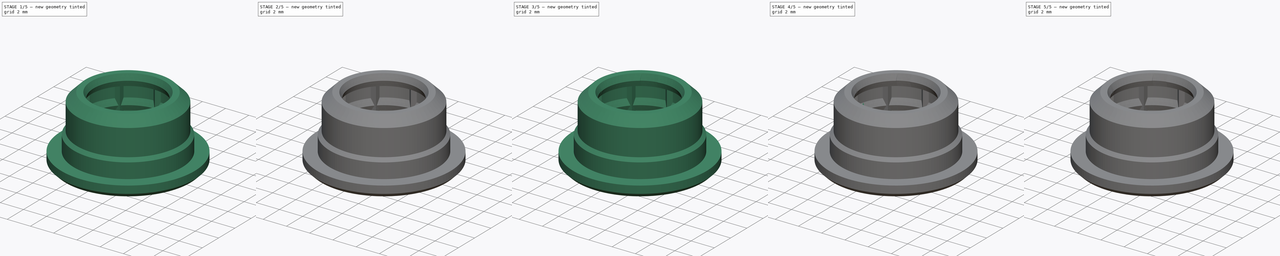
[diagram: build sequence overview — one tinted view per stage of 5, left to right]
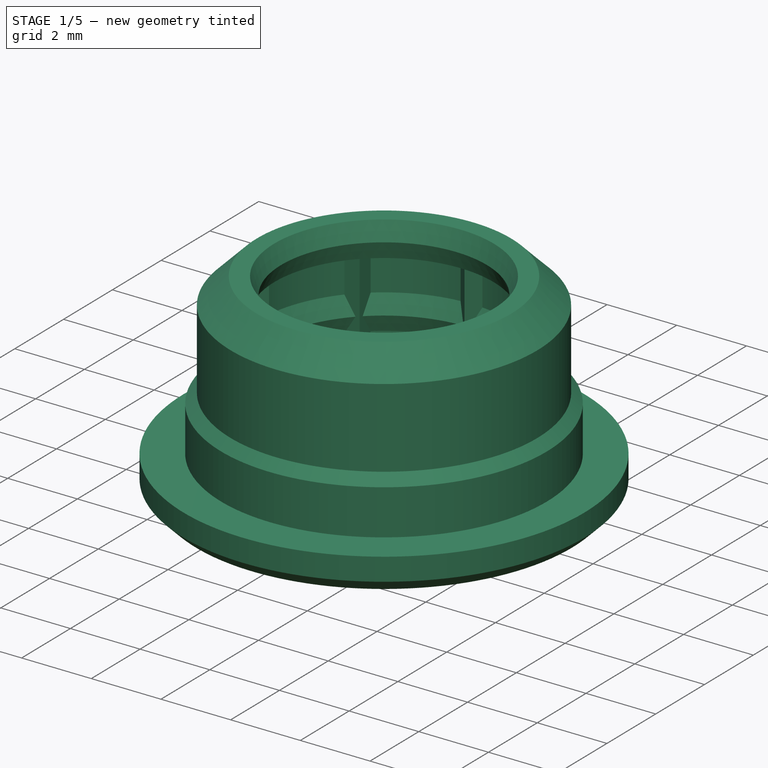
[diagram: stage 1 of 5 — iso view after this stage's code; geometry added in this stage tinted green]
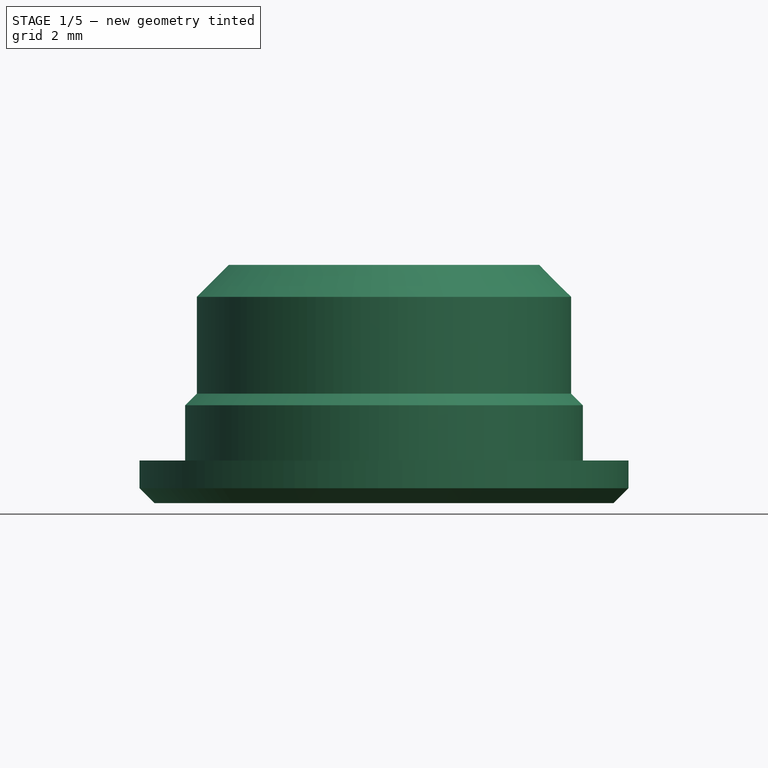
[diagram: stage 1 of 5 — front view after this stage's code; geometry added in this stage tinted green]
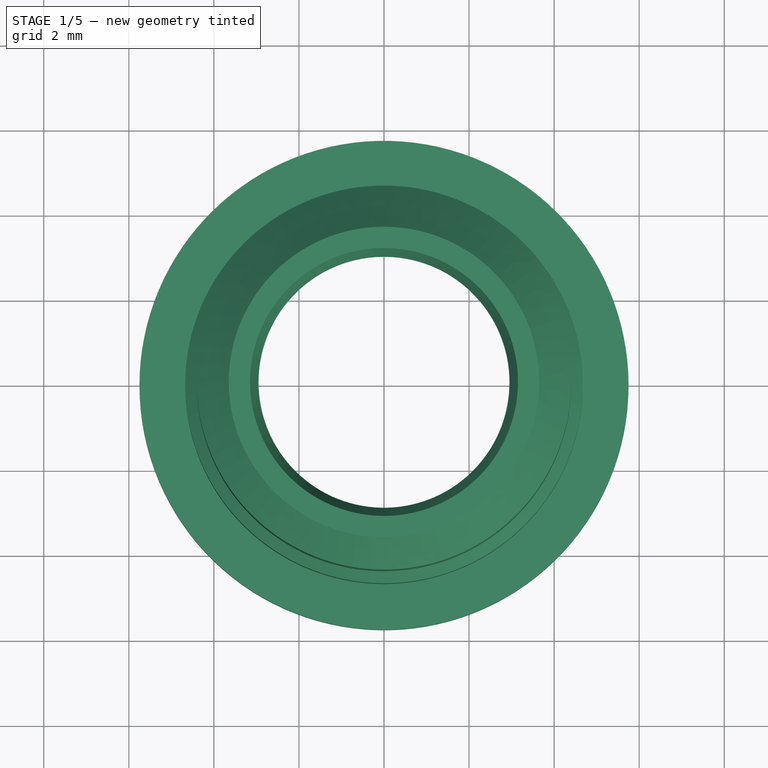
[diagram: stage 1 of 5 — top view after this stage's code; geometry added in this stage tinted green]
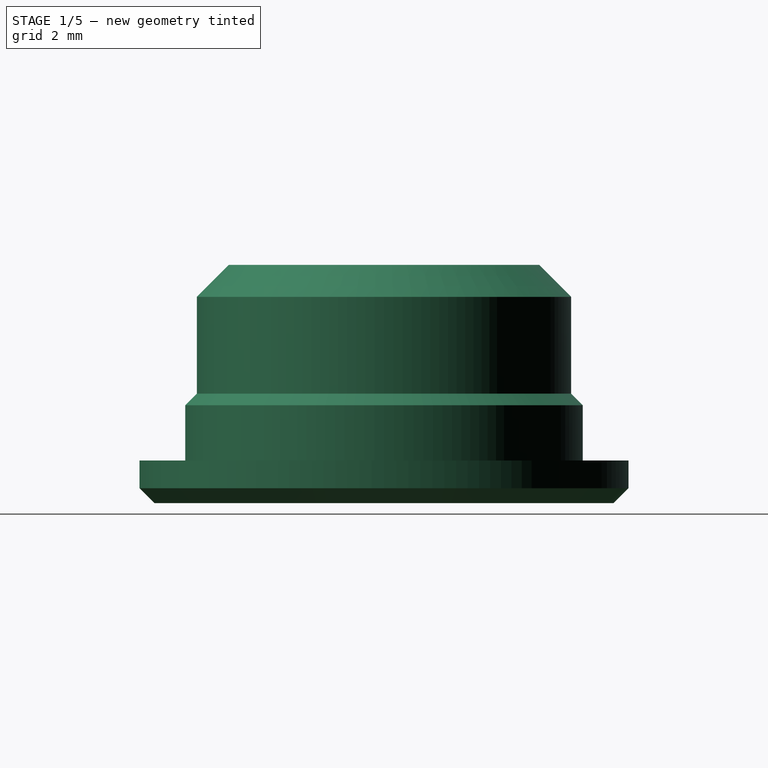
[diagram: stage 1 of 5 — right view after this stage's code; geometry added in this stage tinted green]
FCSTD DOCUMENT  (FreeCAD 1.0R38641 +468 (Git))
Label: PLASTIC-BUSHING-POT
License: All rights reserved
LicenseURL: http://en.wikipedia.org/wiki/All_rights_reserved
objects: TechDraw::DrawViewDimension×19, Sketcher::SketchObject×14, PartDesign::PolarPattern×8, PartDesign::Revolution×7, PartDesign::Body×5, PartDesign::Pocket×3, TechDraw::DrawViewBalloon×3, TechDraw::DrawViewPart×2, PartDesign::Plane×2, PartDesign::Groove×2, TechDraw::DrawSVGTemplate×1, PartDesign::FeatureBase×1, TechDraw::DrawComplexSection×1, TechDraw::DrawViewAnnotation×1, TechDraw::DrawViewImage×1, PartDesign::Pad×1, TechDraw::DrawPage×1
note: 125 computed .brp shape members not serialized (recipe doc carries the construction recipe); baked Part::Feature solids carry a one-line shape summary decoded from their .brp

FEATURE [Sketcher::SketchObject] Sketch
  ArcFitTolerance = 0
  AttachmentSupport = -> [XZ_Plane]
  FullyConstrained = true
  MakeInternals = false
  MapMode = 5
  Placement = pos=(0,0,0) rot=(1,0,0;1.5708rad)
  expr: Constraints[40] = 3.38 mm + 0.025 mm
  expr: Constraints[47] = 3.33 mm + 0.05 mm
  sketch-geometry (21):
    g0: LineSegment StartX=-3.6 StartY=4.6 StartZ=0 EndX=-3.6 EndY=3.5 EndZ=0
    g1: LineSegment StartX=-3.6 StartY=4.6 StartZ=0 EndX=-3.15 EndY=4.6 EndZ=0
    g2: LineSegment StartX=-5.75 StartY=1 StartZ=0 EndX=-4.675 EndY=1 EndZ=0
    g3: LineSegment StartX=-3.15 StartY=5.6 StartZ=0 EndX=-3.65 EndY=5.6 EndZ=0
    g4: LineSegment StartX=-3.65 StartY=5.6 StartZ=0 EndX=-4.4 EndY=4.85 EndZ=0
    g5: LineSegment StartX=-3.905 StartY=0 StartZ=0 EndX=-4.4 EndY=0 EndZ=0
    g6: LineSegment [constr] StartX=-5.75 StartY=0.35 StartZ=0 EndX=-4.4 EndY=0.35 EndZ=0
    g7: LineSegment [constr] StartX=-4.4 StartY=0 StartZ=0 EndX=-4.4 EndY=0.35 EndZ=0
    g8: LineSegment StartX=-5.75 StartY=1 StartZ=0 EndX=-5.75 EndY=0.35 EndZ=0
    g9: LineSegment StartX=-4.675 StartY=1 StartZ=0 EndX=-4.675 EndY=2.3 EndZ=0
    g10: LineSegment StartX=-4.4 StartY=2.575 StartZ=0 EndX=-4.4 EndY=4.85 EndZ=0
    g11: LineSegment StartX=-3.15 StartY=5.6 StartZ=0 EndX=-2.975 EndY=5.1 EndZ=0
    g12: LineSegment StartX=-2.975 StartY=5.1 StartZ=0 EndX=-3.15 EndY=4.6 EndZ=0
    g13: LineSegment StartX=-3.905 StartY=0 StartZ=0 EndX=-3.405 EndY=0.5 EndZ=0
    g14: LineSegment StartX=-3.405 StartY=0.5 StartZ=0 EndX=-3.6 EndY=1 EndZ=0
    g15: LineSegment StartX=-3.6 StartY=3.5 StartZ=0 EndX=-3.38 EndY=3 EndZ=0
    g16: LineSegment StartX=-3.38 StartY=3 StartZ=0 EndX=-3.6 EndY=2.5 EndZ=0
    g17: LineSegment StartX=-3.6 StartY=2.5 StartZ=0 EndX=-3.6 EndY=1 EndZ=0
    g18: LineSegment StartX=-4.675 StartY=2.3 StartZ=0 EndX=-4.4 EndY=2.575 EndZ=0
    g19: LineSegment StartX=-5.75 StartY=0.35 StartZ=0 EndX=-5.4 EndY=0 EndZ=0
    g20: LineSegment StartX=-5.4 StartY=0 StartZ=0 EndX=-4.4 EndY=0 EndZ=0
  constraints (67):
    c: DistanceY(g5,g0) = 4.6
    c: Coincident(g1,g0)
    c: Horizontal(g1)
    c: DistanceY(g1,g3) = 1
    c: Horizontal(g2)
    c: Coincident(g9,g2)
    c: Horizontal(g3)
    c: Coincident(g4,g3)
    c: Coincident(g4,g10)
    c: PointOnObject(g5,g-1)
    c: DistanceX(g2,g-1) = 4.675
    c: Horizontal(g5)
    c: Horizontal(g6)
    c: Coincident(g7,g5)
    c: Coincident(g7,g6)
    c: Vertical(g7)
    c: DistanceX(g2,g-1) = 5.75
    c: Coincident(g8,g2)
    c: Coincident(g8,g6)
    c: Vertical(g8)
    c: DistanceY(g7,g7) = 0.35
    c: DistanceY(g5,g2) = 1
    c: DistanceX(g5,g-1) = 4.4
    c: Angle(g4,g3) = 2.35619
    c: DistanceX(g0,g-1) = 3.6
    c: Vertical(g9)
    c: Vertical(g10)
    c: DistanceY(g9,g9) = 1.3
    c: DistanceX(g4,g3) = 0.75
    c: DistanceY(g5,g3) = 5.6
    c: Coincident(g12,g1)
    c: DistanceX(g3,g3) = 0.5
    c: Coincident(g11,g3)
    c: Coincident(g12,g11)
    c: Equal(g11,g12)
    c: DistanceX(g11,g-1) = 2.975
    c: Vertical(g1,g3)
    c: Vertical(g0)
    c: Coincident(g13,g5)
    c: Coincident(g17,g14)
    c: DistanceX(g13,g-1) = 3.405
    c: Coincident(g14,g13)
    c: DistanceY(g5,g17) = 1
    c: Angle(g-1,g13) = 0.785398
    c: DistanceY(g5,g13) = 0.5
    c: Equal(g15,g16)
    c: Coincident(g15,g16)
    c: DistanceX(g15,g-1) = 3.38
    c: DistanceY(g16,g15) = 1
    c: DistanceY(g-1,g15) = 3
    c: Coincident(g0,g15)
    c: Coincident(g17,g16)
    c: Vertical(g0,g16)
    c: Vertical(g17)
    c: DistanceY(g0,g0) = 1.1
    c: DistanceY(g8,g8) = 0.65
    c: DistanceX(g4,g0) = 0.8
    c: Coincident(g18,g9)
    c: Coincident(g10,g18)
    c: Angle(g9,g18) = 2.35619
    c: DistanceX(g10,g-1) = 4.4
    c: DistanceY(g9,g10) = 0.275
    c: Coincident(g19,g6)
    c: PointOnObject(g19,g-1)
    c: Coincident(g20,g19)
    c: Coincident(g20,g5)
    c: Angle(g19,g20) = 0.785398
FEATURE [PartDesign::Revolution] Revolution
  Angle = 360
  Angle2 = 60
  Axis = (0,2e-16,1)
  Base = (0,0,0)
  Placement = pos=(0,0,0) rot=(1,0,0;1.5708rad)
  Profile = -> Sketch
  ReferenceAxis = -> Sketch [V_Axis]
  Refine = true
  Suppressed = false
  Type = 0
FEATURE [PartDesign::Body] Body003  label="PLASTIC-BUSHING-POT_Injection molded2"
  AllowCompound = false
  Group = -> [Sketch007,Revolution005,Sketch008,Pad,PolarPattern004,Sketch009,Groove,Sketch010,Pocket001,PolarPattern005]
  Origin = -> Origin003
  Tip = -> PolarPattern005
FEATURE [Sketcher::SketchObject] Sketch011
  ArcFitTolerance = 0
  AttachmentSupport = -> [XZ_Plane004]
  FullyConstrained = true
  MakeInternals = false
  MapMode = 5
  Placement = pos=(0,0,0) rot=(1,0,0;1.5708rad)
  sketch-geometry (22):
    g0: LineSegment StartX=-3.6 StartY=4.6 StartZ=0 EndX=-3.6 EndY=3.5 EndZ=0
    g1: LineSegment StartX=-3.6 StartY=4.6 StartZ=0 EndX=-3.15 EndY=4.6 EndZ=0
    g2: LineSegment StartX=-5.75 StartY=1 StartZ=0 EndX=-4.675 EndY=1 EndZ=0
    g3: LineSegment StartX=-3.15 StartY=5.6 StartZ=0 EndX=-3.6 EndY=5.6 EndZ=0
    g4: LineSegment StartX=-3.6 StartY=5.6 StartZ=0 EndX=-4.4 EndY=4.8 EndZ=0
    g5: LineSegment StartX=-3.6 StartY=0 StartZ=0 EndX=-4.4 EndY=0 EndZ=0
    g6: LineSegment StartX=-5.75 StartY=0.35 StartZ=0 EndX=-4.4 EndY=0.35 EndZ=0
    g7: LineSegment StartX=-4.4 StartY=0 StartZ=0 EndX=-4.4 EndY=0.35 EndZ=0
    g8: LineSegment StartX=-5.75 StartY=1 StartZ=0 EndX=-5.75 EndY=0.35 EndZ=0
    g9: LineSegment StartX=-4.675 StartY=1 StartZ=0 EndX=-4.675 EndY=2.3 EndZ=0
    g10: LineSegment StartX=-4.4 StartY=2.575 StartZ=0 EndX=-4.4 EndY=4.8 EndZ=0
    g11: LineSegment StartX=-3.15 StartY=5.6 StartZ=0 EndX=-2.95 EndY=5.1 EndZ=0
    g12: LineSegment StartX=-2.95 StartY=5.1 StartZ=0 EndX=-3.15 EndY=4.6 EndZ=0
    g13: LineSegment [constr] StartX=-3.35 StartY=0.5 StartZ=0 EndX=-3.6 EndY=1 EndZ=0
    g14: LineSegment [constr] StartX=-3.6 StartY=3.5 StartZ=0 EndX=-3.3 EndY=3 EndZ=0
    g15: LineSegment [constr] StartX=-3.3 StartY=3 StartZ=0 EndX=-3.6 EndY=2.5 EndZ=0
    g16: LineSegment StartX=-3.6 StartY=2.5 StartZ=0 EndX=-3.6 EndY=1 EndZ=0
    g17: LineSegment StartX=-4.675 StartY=2.3 StartZ=0 EndX=-4.4 EndY=2.575 EndZ=0
    g18: LineSegment [constr] StartX=-3.6 StartY=5.6 StartZ=0 EndX=-3.6 EndY=4.6 EndZ=0
    g19: LineSegment StartX=-3.6 StartY=1 StartZ=0 EndX=-3.6 EndY=0 EndZ=0
    g20: LineSegment StartX=-3.6 StartY=3.5 StartZ=0 EndX=-3.6 EndY=2.5 EndZ=0
    g21: LineSegment [constr] StartX=-3.35 StartY=0.5 StartZ=0 EndX=-3.85 EndY=0 EndZ=0
  constraints (70):
    c: DistanceY(g5,g0) = 4.6
    c: Coincident(g1,g0)
    c: Horizontal(g1)
    c: DistanceY(g1,g3) = 1
    c: Horizontal(g2)
    c: Coincident(g9,g2)
    c: Horizontal(g3)
    c: Coincident(g4,g3)
    c: Coincident(g4,g10)
    c: DistanceX(g2,g-1) = 4.675
    c: Horizontal(g5)
    c: Horizontal(g6)
    c: Coincident(g7,g5)
    c: Coincident(g7,g6)
    c: Vertical(g7)
    c: DistanceX(g2,g-1) = 5.75
    c: Coincident(g8,g2)
    c: Coincident(g8,g6)
    c: Vertical(g8)
    c: DistanceY(g7,g7) = 0.35
    c: DistanceY(g5,g2) = 1
    c: DistanceX(g5,g-1) = 4.4
    c: Angle(g4,g3) = 2.35619
    c: DistanceX(g0,g-1) = 3.6
    c: Vertical(g9)
    c: Vertical(g10)
    c: DistanceY(g9,g9) = 1.3
    c: DistanceY(g5,g3) = 5.6
    c: Coincident(g12,g1)
    c: DistanceX(g3,g3) = 0.45
    c: Coincident(g11,g3)
    c: Coincident(g12,g11)
    c: Equal(g11,g12)
    c: DistanceX(g11,g-1) = 2.95
    c: Vertical(g1,g3)
    c: Vertical(g0)
    c: Coincident(g16,g13)
    c: DistanceX(g13,g-1) = 3.35
    c: DistanceY(g5,g16) = 1
    c: DistanceY(g5,g13) = 0.5
    c: Equal(g14,g15)
    c: Coincident(g14,g15)
    c: DistanceX(g14,g-1) = 3.3
    c: DistanceY(g15,g14) = 1
    c: DistanceY(g-1,g14) = 3
    c: Coincident(g0,g14)
    c: Coincident(g16,g15)
    c: Vertical(g0,g15)
    c: Vertical(g16)
    c: DistanceY(g0,g0) = 1.1
    c: DistanceY(g8,g8) = 0.65
    c: DistanceX(g4,g0) = 0.8
    c: Coincident(g17,g9)
    c: Coincident(g10,g17)
    c: Angle(g9,g17) = 2.35619
    c: DistanceX(g10,g-1) = 4.4
    c: DistanceY(g9,g10) = 0.275
    c: Coincident(g18,g3)
    c: Coincident(g18,g0)
    c: Vertical(g18)
    c: DistanceY(g4,g4) = 0.8
    c: Coincident(g19,g13)
    c: Vertical(g19)
    c: Coincident(g20,g0)
    c: Coincident(g20,g15)
    c: Coincident(g5,g19)
    c: PointOnObject(g5,g-1)
    c: Coincident(g21,g13)
    c: PointOnObject(g21,g5)
    c: Angle(g21,g5) = 2.35619
FEATURE [PartDesign::Revolution] Revolution006
  Angle = 360
  Angle2 = 60
  Axis = (0,2e-16,1)
  Base = (0,0,0)
  Placement = pos=(0,0,0) rot=(1,0,0;1.5708rad)
  Profile = -> Sketch011
  ReferenceAxis = -> Sketch011 [V_Axis]
  Refine = true
  Suppressed = false
  Type = 0
FEATURE [PartDesign::PolarPattern] PolarPattern006
  Angle = 360
  BaseFeature = -> Revolution006
  Mode = 0
  Occurrences = 8
  Offset = 120
  Placement = pos=(0,0,0) rot=(1,0,0;1.5708rad)
  Suppressed = false
  TransformMode = 0
FEATURE [Sketcher::SketchObject] Sketch013
  ArcFitTolerance = 0
  AttachmentSupport = -> [XZ_Plane004]
  FullyConstrained = true
  MakeInternals = false
  MapMode = 5
  Placement = pos=(0,0,0) rot=(1,0,0;1.5708rad)
  sketch-geometry (3):
    g0: LineSegment StartX=-3.85 StartY=0 StartZ=0 EndX=0 EndY=3.85 EndZ=0
    g1: LineSegment StartX=-3.85 StartY=0 StartZ=0 EndX=0 EndY=0 EndZ=0
    g2: LineSegment StartX=0 StartY=0 StartZ=0 EndX=0 EndY=3.85 EndZ=0
  constraints (8):
    c: PointOnObject(g0,g-1)
    c: PointOnObject(g0,g-2)
    c: Angle(g-1,g0) = 0.785398
    c: DistanceX(g0,g-1) = 3.85
    c: Coincident(g1,g0)
    c: Coincident(g1,g-1)
    c: Coincident(g2,g1)
    c: Coincident(g2,g0)
FEATURE [PartDesign::Groove] Groove001
  Angle = 360
  Angle2 = 60
  Axis = (0,2e-16,1)
  Base = (0,0,0)
  BaseFeature = -> PolarPattern006
  Placement = pos=(0,0,0) rot=(1,0,0;1.5708rad)
  Profile = -> Sketch013
  ReferenceAxis = -> Sketch013 [V_Axis]
  Reversed = true
  Suppressed = false
  Type = 0
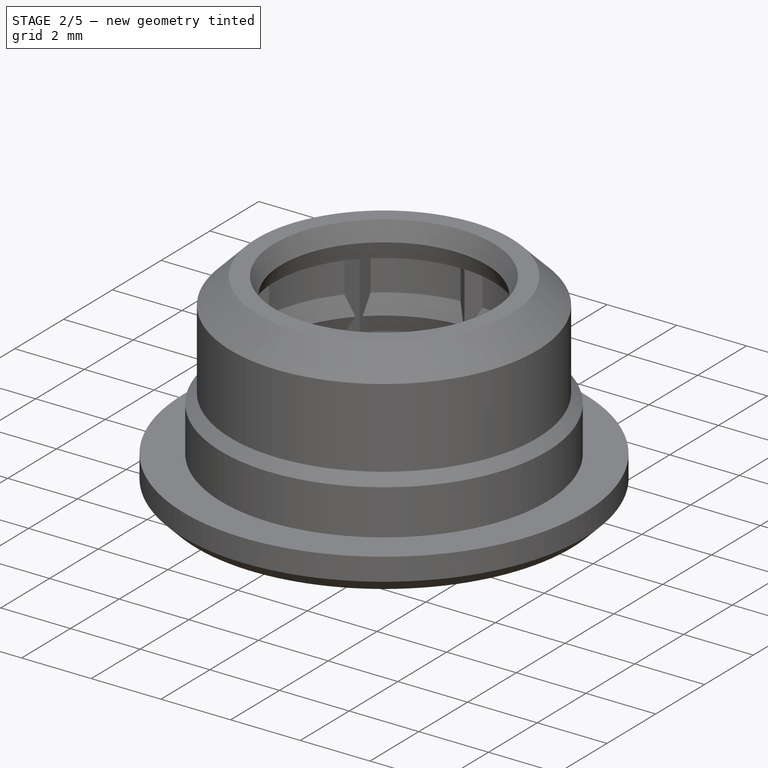
[diagram: stage 2 of 5 — iso view after this stage's code; geometry added in this stage tinted green]
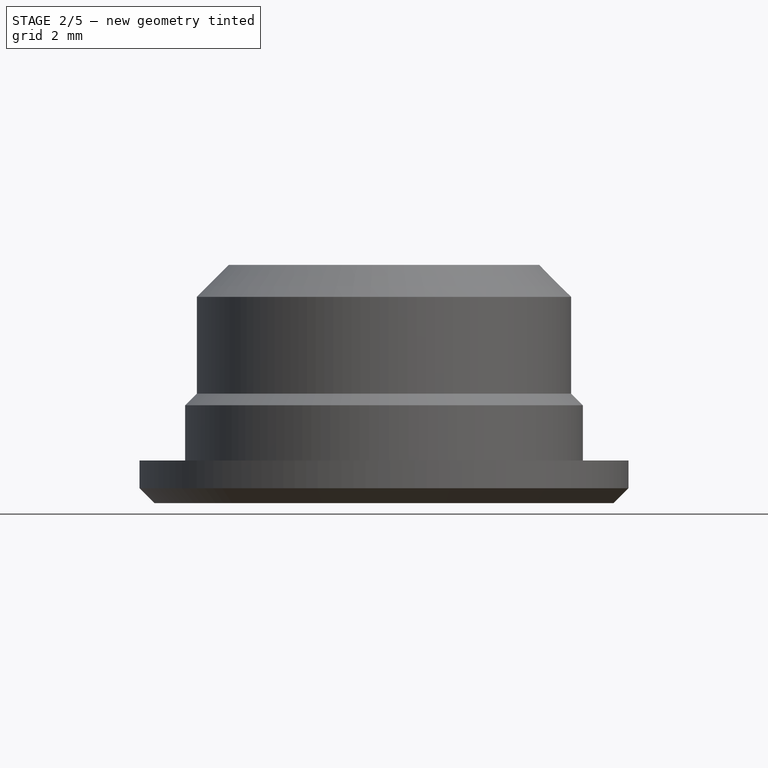
[diagram: stage 2 of 5 — front view after this stage's code; geometry added in this stage tinted green]
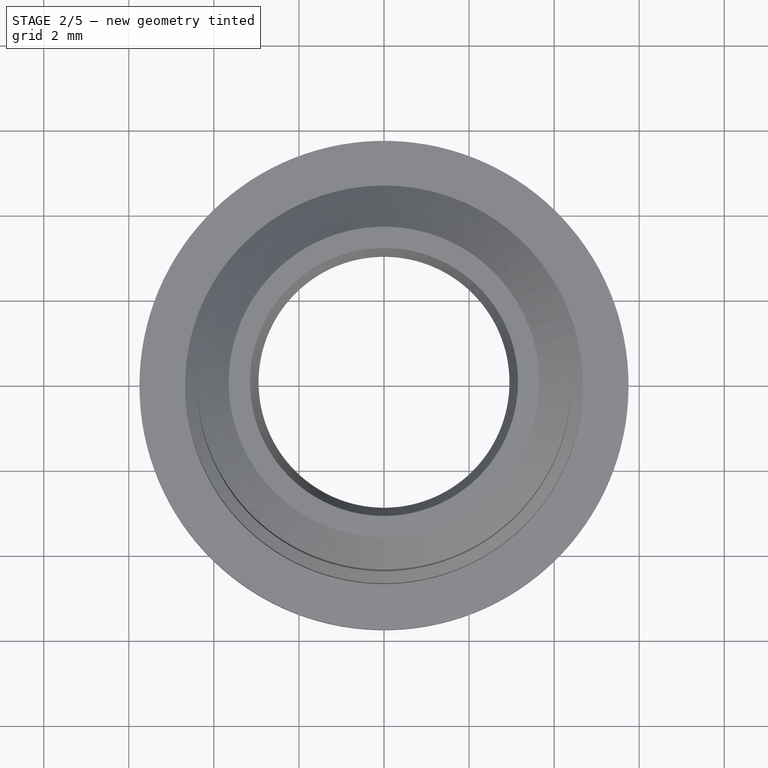
[diagram: stage 2 of 5 — top view after this stage's code; geometry added in this stage tinted green]
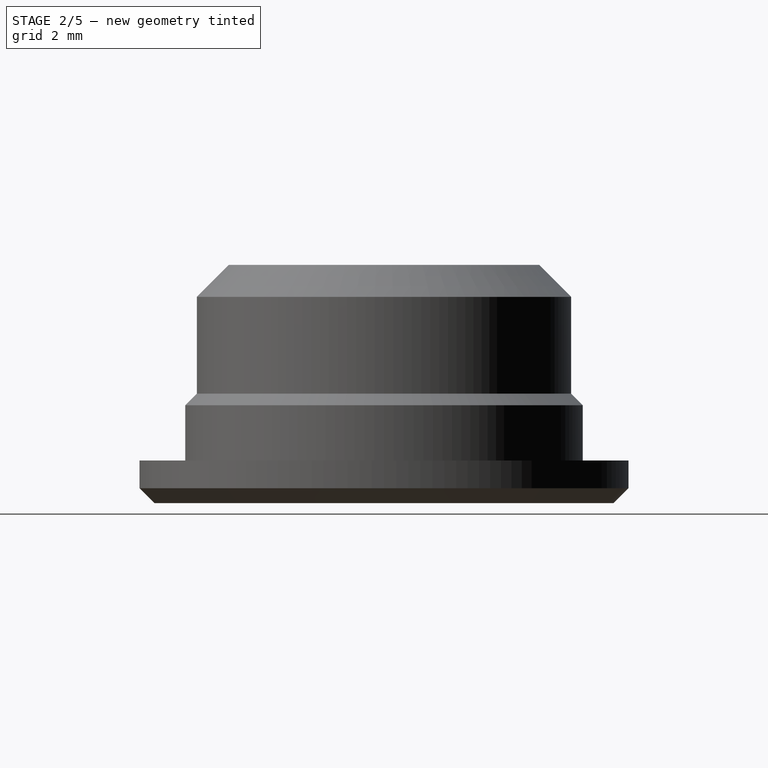
[diagram: stage 2 of 5 — right view after this stage's code; geometry added in this stage tinted green]
FEATURE [PartDesign::Body] Body002  label="PLASTIC-BUSHING-POT_Injection molded"
  AllowCompound = false
  Group = -> [Sketch003,Revolution001,Sketch004,Revolution002,PolarPattern001,DatumPlane,Sketch005,Revolution003,PolarPattern002,DatumPlane001,Sketch006,Revolution004,PolarPattern003]
  Origin = -> Origin002
  Tip = -> PolarPattern003
FEATURE [Sketcher::SketchObject] Sketch007
  ArcFitTolerance = 0
  AttachmentSupport = -> [XZ_Plane003]
  FullyConstrained = true
  MakeInternals = false
  MapMode = 5
  Placement = pos=(0,0,0) rot=(1,0,0;1.5708rad)
  sketch-geometry (22):
    g0: LineSegment StartX=-3.6 StartY=4.6 StartZ=0 EndX=-3.6 EndY=3.5 EndZ=0
    g1: LineSegment StartX=-3.6 StartY=4.6 StartZ=0 EndX=-3.15 EndY=4.6 EndZ=0
    g2: LineSegment StartX=-5.75 StartY=1 StartZ=0 EndX=-4.675 EndY=1 EndZ=0
    g3: LineSegment StartX=-3.15 StartY=5.6 StartZ=0 EndX=-3.6 EndY=5.6 EndZ=0
    g4: LineSegment StartX=-3.6 StartY=5.6 StartZ=0 EndX=-4.4 EndY=4.8 EndZ=0
    g5: LineSegment StartX=-3.6 StartY=0 StartZ=0 EndX=-4.4 EndY=0 EndZ=0
    g6: LineSegment StartX=-5.75 StartY=0.35 StartZ=0 EndX=-4.4 EndY=0.35 EndZ=0
    g7: LineSegment StartX=-4.4 StartY=0 StartZ=0 EndX=-4.4 EndY=0.35 EndZ=0
    g8: LineSegment StartX=-5.75 StartY=1 StartZ=0 EndX=-5.75 EndY=0.35 EndZ=0
    g9: LineSegment StartX=-4.675 StartY=1 StartZ=0 EndX=-4.675 EndY=2.3 EndZ=0
    g10: LineSegment StartX=-4.4 StartY=2.575 StartZ=0 EndX=-4.4 EndY=4.8 EndZ=0
    g11: LineSegment StartX=-3.15 StartY=5.6 StartZ=0 EndX=-2.95 EndY=5.1 EndZ=0
    g12: LineSegment StartX=-2.95 StartY=5.1 StartZ=0 EndX=-3.15 EndY=4.6 EndZ=0
    g13: LineSegment [constr] StartX=-3.35 StartY=0.5 StartZ=0 EndX=-3.6 EndY=1 EndZ=0
    g14: LineSegment [constr] StartX=-3.6 StartY=3.5 StartZ=0 EndX=-3.3 EndY=3 EndZ=0
    g15: LineSegment [constr] StartX=-3.3 StartY=3 StartZ=0 EndX=-3.6 EndY=2.5 EndZ=0
    g16: LineSegment StartX=-3.6 StartY=2.5 StartZ=0 EndX=-3.6 EndY=1 EndZ=0
    g17: LineSegment StartX=-4.675 StartY=2.3 StartZ=0 EndX=-4.4 EndY=2.575 EndZ=0
    g18: LineSegment [constr] StartX=-3.6 StartY=5.6 StartZ=0 EndX=-3.6 EndY=4.6 EndZ=0
    g19: LineSegment StartX=-3.6 StartY=1 StartZ=0 EndX=-3.6 EndY=0 EndZ=0
    g20: LineSegment StartX=-3.6 StartY=3.5 StartZ=0 EndX=-3.6 EndY=2.5 EndZ=0
    g21: LineSegment [constr] StartX=-3.35 StartY=0.5 StartZ=0 EndX=-3.85 EndY=0 EndZ=0
  constraints (70):
    c: DistanceY(g5,g0) = 4.6
    c: Coincident(g1,g0)
    c: Horizontal(g1)
    c: DistanceY(g1,g3) = 1
    c: Horizontal(g2)
    c: Coincident(g9,g2)
    c: Horizontal(g3)
    c: Coincident(g4,g3)
    c: Coincident(g4,g10)
    c: DistanceX(g2,g-1) = 4.675
    c: Horizontal(g5)
    c: Horizontal(g6)
    c: Coincident(g7,g5)
    c: Coincident(g7,g6)
    c: Vertical(g7)
    c: DistanceX(g2,g-1) = 5.75
    c: Coincident(g8,g2)
    c: Coincident(g8,g6)
    c: Vertical(g8)
    c: DistanceY(g7,g7) = 0.35
    c: DistanceY(g5,g2) = 1
    c: DistanceX(g5,g-1) = 4.4
    c: Angle(g4,g3) = 2.35619
    c: DistanceX(g0,g-1) = 3.6
    c: Vertical(g9)
    c: Vertical(g10)
    c: DistanceY(g9,g9) = 1.3
    c: DistanceY(g5,g3) = 5.6
    c: Coincident(g12,g1)
    c: DistanceX(g3,g3) = 0.45
    c: Coincident(g11,g3)
    c: Coincident(g12,g11)
    c: Equal(g11,g12)
    c: DistanceX(g11,g-1) = 2.95
    c: Vertical(g1,g3)
    c: Vertical(g0)
    c: Coincident(g16,g13)
    c: DistanceX(g13,g-1) = 3.35
    c: DistanceY(g5,g16) = 1
    c: DistanceY(g5,g13) = 0.5
    c: Equal(g14,g15)
    c: Coincident(g14,g15)
    c: DistanceX(g14,g-1) = 3.3
    c: DistanceY(g15,g14) = 1
    c: DistanceY(g-1,g14) = 3
    c: Coincident(g0,g14)
    c: Coincident(g16,g15)
    c: Vertical(g0,g15)
    c: Vertical(g16)
    c: DistanceY(g0,g0) = 1.1
    c: DistanceY(g8,g8) = 0.65
    c: DistanceX(g4,g0) = 0.8
    c: Coincident(g17,g9)
    c: Coincident(g10,g17)
    c: Angle(g9,g17) = 2.35619
    c: DistanceX(g10,g-1) = 4.4
    c: DistanceY(g9,g10) = 0.275
    c: Coincident(g18,g3)
    c: Coincident(g18,g0)
    c: Vertical(g18)
    c: DistanceY(g4,g4) = 0.8
    c: Coincident(g19,g13)
    c: Vertical(g19)
    c: Coincident(g20,g0)
    c: Coincident(g20,g15)
    c: Coincident(g5,g19)
    c: PointOnObject(g5,g-1)
    c: Coincident(g21,g13)
    c: PointOnObject(g21,g5)
    c: Angle(g21,g5) = 2.35619
FEATURE [PartDesign::Revolution] Revolution005
  Angle = 360
  Angle2 = 60
  Axis = (0,2e-16,1)
  Base = (0,0,0)
  Placement = pos=(0,0,0) rot=(1,0,0;1.5708rad)
  Profile = -> Sketch007
  ReferenceAxis = -> Sketch007 [V_Axis]
  Refine = true
  Suppressed = false
  Type = 0
FEATURE [Sketcher::SketchObject] Sketch008
  ArcFitTolerance = 0
  AttachmentSupport = -> [XY_Plane003]
  FullyConstrained = true
  MakeInternals = false
  MapMode = 5
  sketch-geometry (5):
    g0: ArcOfCircle CenterX=0 CenterY=0 CenterZ=0 NormalX=0 NormalY=0 NormalZ=1 AngleXU=0 Radius=3.6 StartAngle=3.05433 EndAngle=3.22886
    g1: LineSegment StartX=-3.5863 StartY=0.313761 StartZ=0 EndX=-3.3 EndY=0 EndZ=0
    g2: LineSegment StartX=-3.3 StartY=0 StartZ=0 EndX=-3.5863 EndY=-0.313761 EndZ=0
    g3: LineSegment [constr] StartX=-3.5863 StartY=0.313761 StartZ=0 EndX=0 EndY=0 EndZ=0
    g4: LineSegment [constr] StartX=0 StartY=0 StartZ=0 EndX=-3.5863 EndY=-0.313761 EndZ=0
  constraints (13):
    c: Coincident(g0,g-1)
    c: Diameter(g0) = 7.2
    c: PointOnObject(g1,g-1)
    c: Coincident(g2,g1)
    c: Equal(g2,g1)
    c: DistanceX(g1,g0) = 3.3
    c: Coincident(g3,g1)
    c: Coincident(g3,g0)
    c: Coincident(g4,g0)
    c: Coincident(g4,g2)
    c: Angle(g3,g4) = 0.174533
    c: Coincident(g0,g2)
    c: Coincident(g0,g1)
FEATURE [PartDesign::Pad] Pad
  BaseFeature = -> Revolution005
  Direction = (0,0,1)
  Length = 10
  Length2 = 10
  Placement = pos=(0,0,0) rot=(1,0,0;1.5708rad)
  Profile = -> Sketch008
  ReferenceAxis = -> Sketch008 [N_Axis]
  Suppressed = false
  Type = 2
FEATURE [PartDesign::PolarPattern] PolarPattern004
  Angle = 360
  Axis = -> Sketch008 [N_Axis]
  BaseFeature = -> Pad
  Mode = 0
  Occurrences = 8
  Offset = 120
  Originals = -> [Pad]
  Placement = pos=(0,0,0) rot=(1,0,0;1.5708rad)
  Suppressed = false
  TransformMode = 0
FEATURE [Sketcher::SketchObject] Sketch014
  ArcFitTolerance = 0
  AttachmentSupport = -> [XY_Plane004]
  FullyConstrained = true
  MakeInternals = false
  MapMode = 5
  sketch-geometry (2):
    g0: LineSegment [constr] StartX=0 StartY=0 StartZ=0 EndX=3.14119 EndY=1.30112 EndZ=0
    g1: Circle CenterX=2.54067 CenterY=1.05238 CenterZ=0 NormalX=0 NormalY=0 NormalZ=1 AngleXU=0 Radius=0.65
  constraints (6):
    c: Coincident(g0,g-1)
    c: Angle(g-1,g0) = 0.392699
    c: Distance(g0) = 3.4
    c: PointOnObject(g1,g0)
    c: PointOnObject(g0,g1)
    c: Diameter(g1) = 1.3
FEATURE [PartDesign::Pocket] Pocket002
  BaseFeature = -> Groove001
  Direction = (0,0,-1)
  Length = 5
  Length2 = 5
  Placement = pos=(0,0,0) rot=(1,0,0;1.5708rad)
  Profile = -> Sketch014
  ReferenceAxis = -> Sketch014 [N_Axis]
  Reversed = true
  Suppressed = false
  Type = 1
FEATURE [PartDesign::PolarPattern] PolarPattern007
  Angle = 360
  Axis = -> Sketch014 [N_Axis]
  BaseFeature = -> Pocket002
  Mode = 0
  Occurrences = 4
  Offset = 120
  Originals = -> [Pocket002]
  Placement = pos=(0,0,0) rot=(1,0,0;1.5708rad)
  Suppressed = false
  TransformMode = 0
FEATURE [PartDesign::Body] Body004  label="PLASTIC-BUSHING-POT_Injection molded3"
  AllowCompound = false
  Group = -> [Sketch011,Revolution006,PolarPattern006,Sketch013,Groove001,Sketch014,Pocket002,PolarPattern007]
  Origin = -> Origin004
  Tip = -> PolarPattern007
FEATURE [TechDraw::DrawViewBalloon] Balloon
  BubbleShape = 2
  EndType = 6
  EndTypeScale = 1
  KinkLength = 0
  LockPosition = false
  OriginX = 9.34565
  OriginY = 54.8656
  Rotation = 0
  ScaleType = 0
  ShapeScale = 1
  SourceView = -> Dimension027
  Text = 4
  TextWrapLen = -1
  X = 13.5682
  Y = 52.1624
FEATURE [TechDraw::DrawViewBalloon] Balloon001
  BubbleShape = 2
  EndType = 6
  EndTypeScale = 1
  KinkLength = 0
  LockPosition = false
  OriginX = 8.9798
  OriginY = 38.7684
  Rotation = 0
  ScaleType = 0
  ShapeScale = 1
  SourceView = -> Dimension028
  Text = 4
  TextWrapLen = -1
  X = 12.3338
  Y = 34.9883
FEATURE [TechDraw::DrawViewBalloon] Balloon002
  BubbleShape = 2
  EndType = 6
  EndTypeScale = 1
  KinkLength = 0
  LockPosition = false
  OriginX = 8.88834
  OriginY = -46.9618
  Rotation = 0
  ScaleType = 0
  ShapeScale = 1
  SourceView = -> Dimension026
  Text = 4
  TextWrapLen = -1
  X = 14.0258
  Y = -42.9676
FEATURE [TechDraw::DrawPage] Page001  label="PLASTIC-BUSHING-POT_Drawing"
  KeepUpdated = true
  NextBalloonIndex = 8
  ProjectionType = 0
  Template = -> Template
  Views = -> [View,ComplexSection,View001,Dimension002,Dimension006,Dimension007,Dimension016,Annotation,Dimension023,Dimension026,Dimension027,Dimension028,Dimension029,Dimension030,Dimension031,Dimension032,Dimension033,Dimension035,Dimension036,Dimension037,Dimension039,Dimension,Dimension040,ActiveView,Balloon,Balloon001,Balloon002]
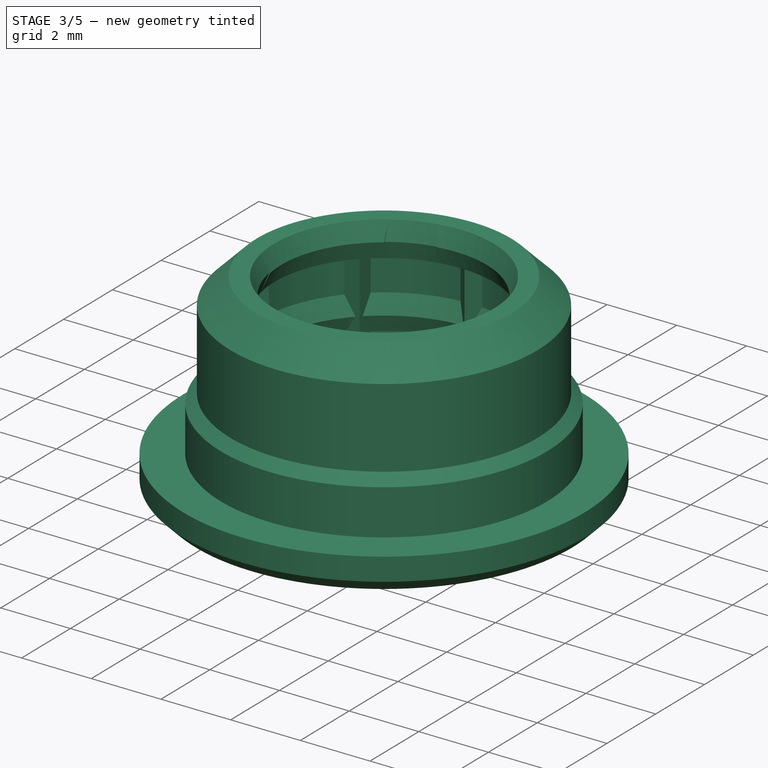
[diagram: stage 3 of 5 — iso view after this stage's code; geometry added in this stage tinted green]
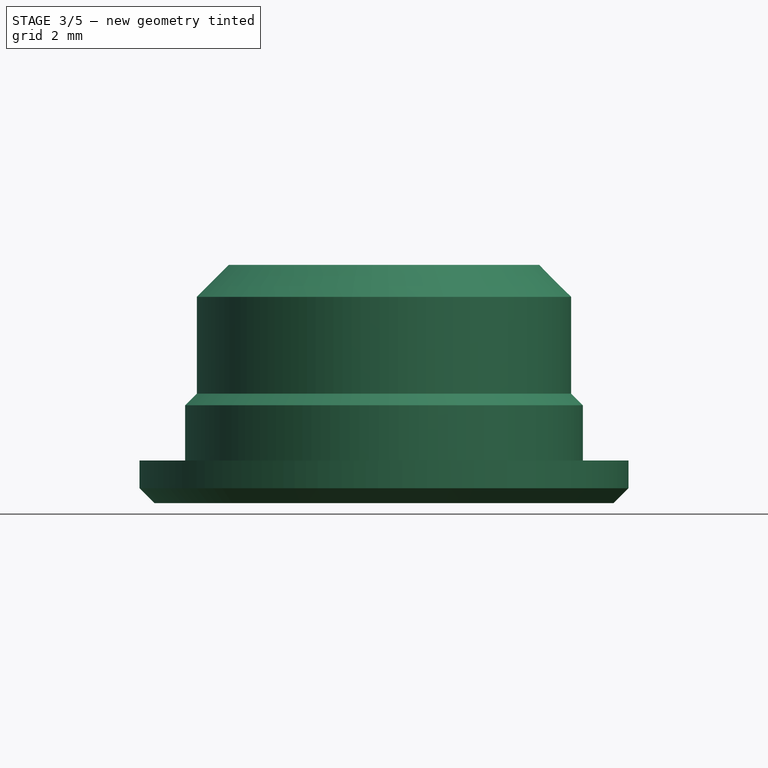
[diagram: stage 3 of 5 — front view after this stage's code; geometry added in this stage tinted green]
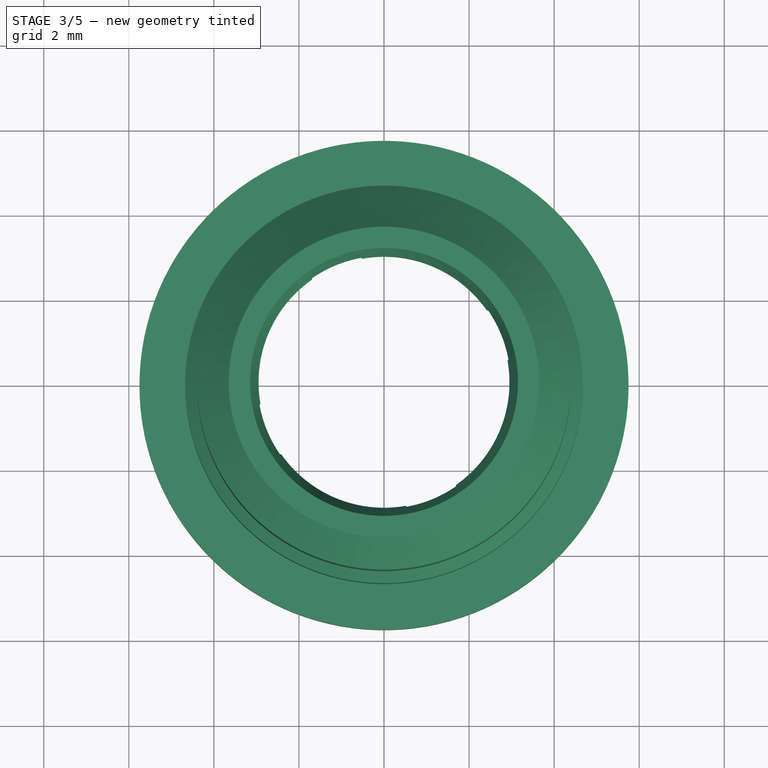
[diagram: stage 3 of 5 — top view after this stage's code; geometry added in this stage tinted green]
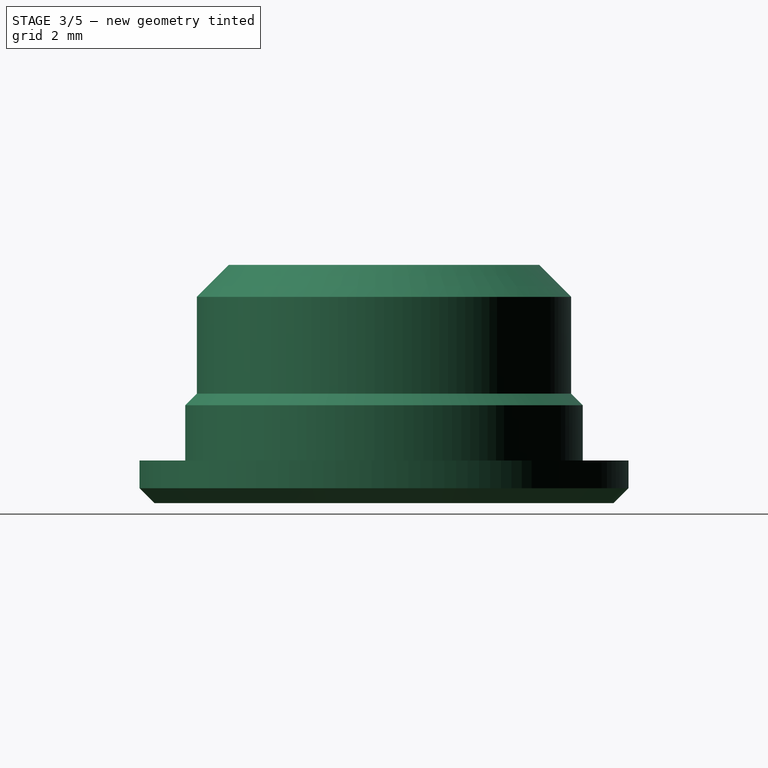
[diagram: stage 3 of 5 — right view after this stage's code; geometry added in this stage tinted green]
FEATURE [PartDesign::Body] Body001  label="PLASTIC-BUSHING-POT_Printed"
  AllowCompound = false
  BaseFeature = -> Body
  Group = -> [Clone,Sketch001,Pocket,PolarPattern]
  Origin = -> Origin001
  Tip = -> PolarPattern
FEATURE [TechDraw::DrawViewPart] View
  CoarseView = false
  Direction = (0,-1,0)
  Focus = 100
  HardHidden = false
  IsoCount = 0
  IsoHidden = false
  IsoVisible = true
  LockPosition = false
  Perspective = false
  Rotation = 0
  Scale = 10
  ScaleType = 2
  ScrubCount = 0
  SeamHidden = false
  SeamVisible = true
  SmoothHidden = false
  SmoothVisible = true
  Source = -> [Body]
  X = 104.919
  XDirection = (1,0,1e-06)
  Y = 220.471
FEATURE [TechDraw::DrawComplexSection] ComplexSection  label="Section A - A"
  BaseView = -> View
  CoarseView = false
  CutSurfaceDisplay = 2
  CuttingToolWireObject = -> Sketch002
  Direction = (-1,0,-1e-06)
  FileGeomPattern = C:/Program Files/FreeCAD 0.21/data/Mod/TechDraw/PAT/FCPAT.pat
  FileHatchPattern = C:/Program Files/FreeCAD 0.21/data/Mod/TechDraw/Patterns/simple.svg
  Focus = 100
  FuseBeforeCut = false
  HardHidden = false
  HatchOffset = (0,0,0)
  HatchRotation = 0
  HatchScale = 1
  IsoCount = 0
  IsoHidden = false
  IsoVisible = true
  LockPosition = false
  NameGeomPattern = Gyémánt bevonatú
  Perspective = false
  ProjectionStrategy = 0
  Rotation = -90
  Scale = 10
  ScaleType = 2
  ScrubCount = 0
  SeamHidden = false
  SeamVisible = true
  SectionDirection = 4
  SectionLineStretch = 1
  SectionNormal = (-1,0,-1e-06)
  SectionOrigin = (0,0,0)
  SectionSymbol = A
  SmoothHidden = false
  SmoothVisible = true
  Source = -> [Body]
  TrimAfterCut = false
  UsePreviousCut = false
  X = 281.503
  XDirection = (1e-06,0,-1)
  Y = 217.69
FEATURE [TechDraw::DrawViewPart] View001
  CoarseView = false
  Direction = (-1e-06,0,1)
  Focus = 100
  HardHidden = false
  IsoCount = 0
  IsoHidden = false
  IsoVisible = true
  LockPosition = false
  Perspective = false
  Rotation = 0
  Scale = 10
  ScaleType = 2
  ScrubCount = 0
  SeamHidden = false
  SeamVisible = true
  SmoothHidden = false
  SmoothVisible = true
  Source = -> [Body]
  X = 106.159
  XDirection = (1,0,1e-06)
  Y = 97.3006
FEATURE [TechDraw::DrawViewDimension] Dimension002
  AngleOverride = false
  Arbitrary = false
  ArbitraryTolerances = false
  BoxCorners = (2) [(-57.5,-57.5,0),(57.5,57.5,0)]
  EqualTolerance = true
  ExtensionAngle = 0
  FormatSpec = ⌀%.2w
  FormatSpecOverTolerance = %+.2w
  FormatSpecUnderTolerance = %+.2w
  Inverted = false
  LineAngle = 0
  LockPosition = false
  MeasureType = 1
  OverTolerance = 0
  References2D = -> [View001]
  Rotation = 0
  ScaleType = 0
  TheoreticalExact = false
  Type = 5
  UnderTolerance = 0
  X = 73.3272
  Y = 38.6561
FEATURE [TechDraw::DrawViewDimension] Dimension006
  AngleOverride = false
  Arbitrary = false
  ArbitraryTolerances = false
  EqualTolerance = true
  ExtensionAngle = 0
  FormatSpec = ⌀%.2w
  FormatSpecOverTolerance = %+.2w
  FormatSpecUnderTolerance = %+.2w
  Inverted = false
  LineAngle = 0
  LockPosition = false
  MeasureType = 1
  OverTolerance = 0
  References2D = -> [View]
  Rotation = 0
  ScaleType = 0
  TheoreticalExact = false
  Type = 0
  UnderTolerance = 0
  X = -0.516568
  Y = -42.4063
FEATURE [TechDraw::DrawViewDimension] Dimension007
  AngleOverride = false
  Arbitrary = false
  ArbitraryTolerances = false
  EqualTolerance = true
  ExtensionAngle = 0
  FormatSpec = %.2w×45°
  FormatSpecOverTolerance = %+.2w
  FormatSpecUnderTolerance = %+.2w
  Inverted = false
  LineAngle = 0
  LockPosition = false
  MeasureType = 1
  OverTolerance = 0
  References2D = -> [ComplexSection]
  Rotation = 0
  ScaleType = 0
  TheoreticalExact = false
  Type = 2
  UnderTolerance = 0
  X = 64.4303
  Y = 6.24021
FEATURE [TechDraw::DrawViewDimension] Dimension016
  AngleOverride = false
  Arbitrary = false
  ArbitraryTolerances = false
  BoxCorners = (2) [(-57.5,-57.5,0),(57.5,57.5,0)]
  EqualTolerance = true
  ExtensionAngle = 0
  FormatSpec = ⌀%.2w
  FormatSpecOverTolerance = %+.2w
  FormatSpecUnderTolerance = %+.2w
  Inverted = false
  LineAngle = 0
  LockPosition = false
  MeasureType = 1
  OverTolerance = 0
  References2D = -> [View001]
  Rotation = 0
  ScaleType = 0
  TheoreticalExact = false
  Type = 5
  UnderTolerance = 0
  X = 78.5171
  Y = 25.4885
FEATURE [TechDraw::DrawViewAnnotation] Annotation
  Font = osifont
  LineSpace = 100
  LockPosition = false
  MaxWidth = -1
  Rotation = 0
  ScaleType = 0
  Text = Section A-A
  TextSize = 4
  TextStyle = 0
  X = 281.503
  Y = 148.402
FEATURE [TechDraw::DrawViewDimension] Dimension023
  AngleOverride = false
  Arbitrary = false
  ArbitraryTolerances = false
  EqualTolerance = true
  ExtensionAngle = 0
  FormatSpec = %.2w×45°
  FormatSpecOverTolerance = %+.2w
  FormatSpecUnderTolerance = %+.2w
  Inverted = false
  LineAngle = 0
  LockPosition = false
  MeasureType = 1
  OverTolerance = 0
  References2D = -> [ComplexSection]
  Rotation = 0
  ScaleType = 0
  TheoreticalExact = false
  Type = 2
  UnderTolerance = 0
  X = 65.124
  Y = -37.7849
FEATURE [TechDraw::DrawViewDimension] Dimension026
  AngleOverride = false
  Arbitrary = false
  ArbitraryTolerances = false
  EqualTolerance = true
  ExtensionAngle = 0
  FormatSpec = ⌀%.2w
  FormatSpecOverTolerance = %+.2w
  FormatSpecUnderTolerance = %+.2w
  Inverted = false
  LineAngle = 0
  LockPosition = false
  MeasureType = 1
  OverTolerance = 0
  References2D = -> [ComplexSection]
  Rotation = 0
  ScaleType = 0
  TheoreticalExact = false
  Type = 1
  UnderTolerance = 0
  X = -0.581342
  Y = -42.3351
FEATURE [TechDraw::DrawViewDimension] Dimension027
  AngleOverride = false
  Arbitrary = false
  ArbitraryTolerances = false
  EqualTolerance = true
  ExtensionAngle = 0
  FormatSpec = ⌀%.2w
  FormatSpecOverTolerance = %+.2w
  FormatSpecUnderTolerance = %+.2w
  Inverted = false
  LineAngle = 0
  LockPosition = false
  MeasureType = 1
  OverTolerance = 0
  References2D = -> [ComplexSection]
  Rotation = 0
  ScaleType = 0
  TheoreticalExact = false
  Type = 1
  UnderTolerance = 0
  X = -1.72554
  Y = 51.8134
FEATURE [TechDraw::DrawViewDimension] Dimension028
  AngleOverride = false
  Arbitrary = false
  ArbitraryTolerances = false
  EqualTolerance = true
  ExtensionAngle = 0
  FormatSpec = ⌀%.2w
  FormatSpecOverTolerance = %+.2w
  FormatSpecUnderTolerance = %+.2w
  Inverted = false
  LineAngle = 0
  LockPosition = false
  MeasureType = 1
  OverTolerance = 0
  References2D = -> [ComplexSection]
  Rotation = 0
  ScaleType = 0
  TheoreticalExact = false
  Type = 1
  UnderTolerance = 0
  X = -1.43633
  Y = 42.1012
FEATURE [TechDraw::DrawViewDimension] Dimension029
  AngleOverride = false
  Arbitrary = false
  ArbitraryTolerances = false
  EqualTolerance = true
  ExtensionAngle = 0
  FormatSpec = %.2w
  FormatSpecOverTolerance = %+.2w
  FormatSpecUnderTolerance = %+.2w
  Inverted = false
  LineAngle = 0
  LockPosition = false
  MeasureType = 1
  OverTolerance = 0
  References2D = -> [ComplexSection]
  Rotation = 0
  ScaleType = 0
  TheoreticalExact = false
  Type = 2
  UnderTolerance = 0
  X = -77.3726
  Y = -3.98069
FEATURE [TechDraw::DrawViewDimension] Dimension030
  AngleOverride = false
  Arbitrary = false
  ArbitraryTolerances = false
  EqualTolerance = true
  ExtensionAngle = 0
  FormatSpec = %.2w
  FormatSpecOverTolerance = %+.2w
  FormatSpecUnderTolerance = %+.2w
  Inverted = false
  LineAngle = 0
  LockPosition = false
  MeasureType = 1
  OverTolerance = 0
  References2D = -> [ComplexSection]
  Rotation = 0
  ScaleType = 0
  TheoreticalExact = false
  Type = 2
  UnderTolerance = 0
  X = -68.74
  Y = -11.4007
FEATURE [TechDraw::DrawViewDimension] Dimension031
  AngleOverride = false
  Arbitrary = false
  ArbitraryTolerances = false
  EqualTolerance = true
  ExtensionAngle = 0
  FormatSpec = %.2w
  FormatSpecOverTolerance = %+.2w
  FormatSpecUnderTolerance = %+.2w
  Inverted = false
  LineAngle = 0
  LockPosition = false
  MeasureType = 1
  OverTolerance = 0
  References2D = -> [ComplexSection]
  Rotation = 0
  ScaleType = 0
  TheoreticalExact = false
  Type = 2
  UnderTolerance = 0
  X = 25.0275
  Y = 12.3082
FEATURE [TechDraw::DrawViewDimension] Dimension032
  AngleOverride = false
  Arbitrary = false
  ArbitraryTolerances = false
  EqualTolerance = true
  ExtensionAngle = 0
  FormatSpec = %.2w
  FormatSpecOverTolerance = %+.2w
  FormatSpecUnderTolerance = %+.2w
  Inverted = false
  LineAngle = 0
  LockPosition = false
  MeasureType = 1
  OverTolerance = 0
  References2D = -> [ComplexSection]
  Rotation = 0
  ScaleType = 0
  TheoreticalExact = false
  Type = 2
  UnderTolerance = 0
  X = -20.675
  Y = -10.8485
FEATURE [TechDraw::DrawViewDimension] Dimension033
  AngleOverride = false
  Arbitrary = false
  ArbitraryTolerances = false
  EqualTolerance = true
  ExtensionAngle = 0
  FormatSpec = %.2w
  FormatSpecOverTolerance = %+.2w
  FormatSpecUnderTolerance = %+.2w
  Inverted = false
  LineAngle = 0
  LockPosition = false
  MeasureType = 1
  OverTolerance = 0
  References2D = -> [ComplexSection]
  Rotation = 0
  ScaleType = 0
  TheoreticalExact = false
  Type = 2
  UnderTolerance = 0
  X = -24.3041
  Y = 17.2508
FEATURE [TechDraw::DrawViewDimension] Dimension035
  AngleOverride = false
  Arbitrary = false
  ArbitraryTolerances = false
  EqualTolerance = true
  ExtensionAngle = 0
  FormatSpec = %.2w
  FormatSpecOverTolerance = %+.2w
  FormatSpecUnderTolerance = %+.2w
  Inverted = false
  LineAngle = 0
  LockPosition = false
  MeasureType = 1
  OverTolerance = 0
  References2D = -> [View]
  Rotation = 0
  ScaleType = 0
  TheoreticalExact = false
  Type = 2
  UnderTolerance = 0
  X = 75.1574
  Y = -13.8278
FEATURE [TechDraw::DrawViewDimension] Dimension036
  AngleOverride = false
  Arbitrary = false
  ArbitraryTolerances = false
  EqualTolerance = true
  ExtensionAngle = 0
  FormatSpec = %.2w
  FormatSpecOverTolerance = %+.2w
  FormatSpecUnderTolerance = %+.2w
  Inverted = false
  LineAngle = 0
  LockPosition = false
  MeasureType = 1
  OverTolerance = 0
  References2D = -> [View]
  Rotation = 0
  ScaleType = 0
  TheoreticalExact = false
  Type = 2
  UnderTolerance = 0
  X = 65.6556
  Y = -18.5068
FEATURE [TechDraw::DrawViewDimension] Dimension037
  AngleOverride = false
  Arbitrary = false
  ArbitraryTolerances = false
  EqualTolerance = true
  ExtensionAngle = 0
  FormatSpec = ⌀%.2w
  FormatSpecOverTolerance = %+.2w
  FormatSpecUnderTolerance = %+.2w
  Inverted = false
  LineAngle = 0
  LockPosition = false
  MeasureType = 1
  OverTolerance = 0
  References2D = -> [ComplexSection]
  Rotation = 0
  ScaleType = 0
  TheoreticalExact = false
  Type = 1
  UnderTolerance = 0
  X = -0.525805
  Y = -49.0071
FEATURE [TechDraw::DrawViewDimension] Dimension039
  AngleOverride = false
  Arbitrary = false
  ArbitraryTolerances = false
  EqualTolerance = true
  ExtensionAngle = 0
  FormatSpec = (%.5w)×45°
  FormatSpecOverTolerance = %+.2w
  FormatSpecUnderTolerance = %+.2w
  Inverted = false
  LineAngle = 0
  LockPosition = false
  MeasureType = 1
  OverTolerance = 0
  References2D = -> [View]
  Rotation = 0
  ScaleType = 0
  TheoreticalExact = false
  Type = 2
  UnderTolerance = 0
  X = 66.064
  Y = 20.1318
FEATURE [TechDraw::DrawViewDimension] Dimension
  AngleOverride = false
  Arbitrary = false
  ArbitraryTolerances = false
  EqualTolerance = true
  ExtensionAngle = 0
  FormatSpec = %.2w
  FormatSpecOverTolerance = %+.2w
  FormatSpecUnderTolerance = %+.2w
  Inverted = false
  LineAngle = 0
  LockPosition = false
  MeasureType = 1
  OverTolerance = 0
  References2D = -> [View]
  Rotation = 0
  ScaleType = 0
  TheoreticalExact = false
  Type = 2
  UnderTolerance = 0
  X = -70.3636
  Y = -16.1758
FEATURE [TechDraw::DrawViewDimension] Dimension040
  AngleOverride = false
  Arbitrary = false
  ArbitraryTolerances = false
  EqualTolerance = true
  ExtensionAngle = 0
  FormatSpec = (%.2w)
  FormatSpecOverTolerance = %+.2w
  FormatSpecUnderTolerance = %+.2w
  Inverted = false
  LineAngle = 0
  LockPosition = false
  MeasureType = 1
  OverTolerance = 0
  References2D = -> [View]
  Rotation = 0
  ScaleType = 0
  TheoreticalExact = false
  Type = 2
  UnderTolerance = 0
  X = -85.3041
  Y = -2.24589
FEATURE [TechDraw::DrawViewImage] ActiveView
  Height = 100
  ImageFile = <userpath>/AppData/Local/Temp/FreeCAD/Cache/FreeCAD_Doc_08b8b2a3-d6cd-4e8a-b76b-68cd6ee703e2_c6fc74_12992/Pag9ED6.tmp.png
  LockPosition = false
  Rotation = 0
  ScaleType = 2
  Width = 100
  X = 355.129
  Y = 110.354
FEATURE [Sketcher::SketchObject] Sketch003
  ArcFitTolerance = 0
  AttachmentSupport = -> [XZ_Plane002]
  FullyConstrained = true
  MakeInternals = false
  MapMode = 5
  Placement = pos=(0,0,0) rot=(1,0,0;1.5708rad)
  sketch-geometry (23):
    g0: LineSegment StartX=-3.6 StartY=4.6 StartZ=0 EndX=-3.6 EndY=3.5 EndZ=0
    g1: LineSegment [constr] StartX=-3.6 StartY=4.6 StartZ=0 EndX=-3.15 EndY=4.6 EndZ=0
    g2: LineSegment StartX=-5.75 StartY=1 StartZ=0 EndX=-4.675 EndY=1 EndZ=0
    g3: LineSegment [constr] StartX=-3.15 StartY=5.6 StartZ=0 EndX=-3.6 EndY=5.6 EndZ=0
    g4: LineSegment StartX=-3.6 StartY=5.6 StartZ=0 EndX=-4.4 EndY=4.8 EndZ=0
    g5: LineSegment StartX=-3.85 StartY=0 StartZ=0 EndX=-4.4 EndY=0 EndZ=0
    g6: LineSegment StartX=-5.75 StartY=0.35 StartZ=0 EndX=-4.4 EndY=0.35 EndZ=0
    g7: LineSegment StartX=-4.4 StartY=0 StartZ=0 EndX=-4.4 EndY=0.35 EndZ=0
    g8: LineSegment StartX=-5.75 StartY=1 StartZ=0 EndX=-5.75 EndY=0.35 EndZ=0
    g9: LineSegment StartX=-4.675 StartY=1 StartZ=0 EndX=-4.675 EndY=2.3 EndZ=0
    g10: LineSegment StartX=-4.4 StartY=2.575 StartZ=0 EndX=-4.4 EndY=4.8 EndZ=0
    g11: LineSegment [constr] StartX=-3.15 StartY=5.6 StartZ=0 EndX=-2.95 EndY=5.1 EndZ=0
    g12: LineSegment [constr] StartX=-2.95 StartY=5.1 StartZ=0 EndX=-3.15 EndY=4.6 EndZ=0
    g13: LineSegment [constr] StartX=-3.35 StartY=0.5 StartZ=0 EndX=-3.6 EndY=1 EndZ=0
    g14: LineSegment [constr] StartX=-3.6 StartY=3.5 StartZ=0 EndX=-3.3 EndY=3 EndZ=0
    g15: LineSegment [constr] StartX=-3.3 StartY=3 StartZ=0 EndX=-3.6 EndY=2.5 EndZ=0
    g16: LineSegment StartX=-3.6 StartY=2.5 StartZ=0 EndX=-3.6 EndY=1 EndZ=0
    g17: LineSegment StartX=-4.675 StartY=2.3 StartZ=0 EndX=-4.4 EndY=2.575 EndZ=0
    g18: LineSegment StartX=-3.6 StartY=5.6 StartZ=0 EndX=-3.6 EndY=4.6 EndZ=0
    g19: LineSegment StartX=-3.6 StartY=1 StartZ=0 EndX=-3.6 EndY=0.25 EndZ=0
    g20: LineSegment StartX=-3.85 StartY=0 StartZ=0 EndX=-3.6 EndY=0.25 EndZ=0
    g21: LineSegment [constr] StartX=-3.6 StartY=0.25 StartZ=0 EndX=-3.35 EndY=0.5 EndZ=0
    g22: LineSegment StartX=-3.6 StartY=3.5 StartZ=0 EndX=-3.6 EndY=2.5 EndZ=0
  constraints (72):
    c: DistanceY(g5,g0) = 4.6
    c: Coincident(g1,g0)
    c: Horizontal(g1)
    c: DistanceY(g1,g3) = 1
    c: Horizontal(g2)
    c: Coincident(g9,g2)
    c: Horizontal(g3)
    c: Coincident(g4,g3)
    c: Coincident(g4,g10)
    c: PointOnObject(g5,g-1)
    c: DistanceX(g2,g-1) = 4.675
    c: Horizontal(g5)
    c: Horizontal(g6)
    c: Coincident(g7,g5)
    c: Coincident(g7,g6)
    c: Vertical(g7)
    c: DistanceX(g2,g-1) = 5.75
    c: Coincident(g8,g2)
    c: Coincident(g8,g6)
    c: Vertical(g8)
    c: DistanceY(g7,g7) = 0.35
    c: DistanceY(g5,g2) = 1
    c: DistanceX(g5,g-1) = 4.4
    c: Angle(g4,g3) = 2.35619
    c: DistanceX(g0,g-1) = 3.6
    c: Vertical(g9)
    c: Vertical(g10)
    c: DistanceY(g9,g9) = 1.3
    c: DistanceY(g5,g3) = 5.6
    c: Coincident(g12,g1)
    c: DistanceX(g3,g3) = 0.45
    c: Coincident(g11,g3)
    c: Coincident(g12,g11)
    c: Equal(g11,g12)
    c: DistanceX(g11,g-1) = 2.95
    c: Vertical(g1,g3)
    c: Vertical(g0)
    c: Coincident(g16,g13)
    c: DistanceX(g13,g-1) = 3.35
    c: DistanceY(g5,g16) = 1
    c: DistanceY(g5,g13) = 0.5
    c: Equal(g14,g15)
    c: Coincident(g14,g15)
    c: DistanceX(g14,g-1) = 3.3
    c: DistanceY(g15,g14) = 1
    c: DistanceY(g-1,g14) = 3
    c: Coincident(g0,g14)
    c: Coincident(g16,g15)
    c: Vertical(g0,g15)
    c: Vertical(g16)
    c: DistanceY(g0,g0) = 1.1
    c: DistanceY(g8,g8) = 0.65
    c: DistanceX(g4,g0) = 0.8
    c: Coincident(g17,g9)
    c: Coincident(g10,g17)
    c: Angle(g9,g17) = 2.35619
    c: DistanceX(g10,g-1) = 4.4
    c: DistanceY(g9,g10) = 0.275
    c: Coincident(g18,g3)
    c: Coincident(g18,g0)
    c: Vertical(g18)
    c: DistanceY(g4,g4) = 0.8
    c: Coincident(g19,g13)
    c: Vertical(g19)
    c: Coincident(g20,g5)
    c: Coincident(g20,g19)
    c: Coincident(g21,g19)
    c: Coincident(g21,g13)
    c: Coincident(g22,g0)
    c: Coincident(g22,g15)
    c: Parallel(g21,g20)
    c: Angle(g20,g5) = 2.35619
FEATURE [PartDesign::Revolution] Revolution001
  Angle = 360
  Angle2 = 60
  Axis = (0,2e-16,1)
  Base = (0,0,0)
  Placement = pos=(0,0,0) rot=(1,0,0;1.5708rad)
  Profile = -> Sketch003
  ReferenceAxis = -> Sketch003 [V_Axis]
  Refine = true
  Suppressed = false
  Type = 0
FEATURE [Sketcher::SketchObject] Sketch009
  ArcFitTolerance = 0
  AttachmentSupport = -> [XZ_Plane003]
  FullyConstrained = true
  MakeInternals = false
  MapMode = 5
  Placement = pos=(0,0,0) rot=(1,0,0;1.5708rad)
  sketch-geometry (3):
    g0: LineSegment StartX=-3.85 StartY=0 StartZ=0 EndX=0 EndY=3.85 EndZ=0
    g1: LineSegment StartX=-3.85 StartY=0 StartZ=0 EndX=0 EndY=0 EndZ=0
    g2: LineSegment StartX=0 StartY=0 StartZ=0 EndX=0 EndY=3.85 EndZ=0
  constraints (8):
    c: PointOnObject(g0,g-1)
    c: PointOnObject(g0,g-2)
    c: Angle(g-1,g0) = 0.785398
    c: DistanceX(g0,g-1) = 3.85
    c: Coincident(g1,g0)
    c: Coincident(g1,g-1)
    c: Coincident(g2,g1)
    c: Coincident(g2,g0)
FEATURE [PartDesign::Groove] Groove
  Angle = 360
  Angle2 = 60
  Axis = (0,2e-16,1)
  Base = (0,0,0)
  BaseFeature = -> PolarPattern004
  Placement = pos=(0,0,0) rot=(1,0,0;1.5708rad)
  Profile = -> Sketch009
  ReferenceAxis = -> Sketch009 [V_Axis]
  Reversed = true
  Suppressed = false
  Type = 0
FEATURE [Sketcher::SketchObject] Sketch010
  ArcFitTolerance = 0
  AttachmentSupport = -> [XY_Plane003]
  FullyConstrained = true
  MakeInternals = false
  MapMode = 5
  sketch-geometry (2):
    g0: LineSegment [constr] StartX=0 StartY=0 StartZ=0 EndX=3.14119 EndY=1.30112 EndZ=0
    g1: Circle CenterX=2.54067 CenterY=1.05238 CenterZ=0 NormalX=0 NormalY=0 NormalZ=1 AngleXU=0 Radius=0.65
  constraints (6):
    c: Coincident(g0,g-1)
    c: Angle(g-1,g0) = 0.392699
    c: Distance(g0) = 3.4
    c: PointOnObject(g1,g0)
    c: PointOnObject(g0,g1)
    c: Diameter(g1) = 1.3
FEATURE [PartDesign::Pocket] Pocket001
  BaseFeature = -> Groove
  Direction = (0,0,-1)
  Length = 5
  Length2 = 5
  Placement = pos=(0,0,0) rot=(1,0,0;1.5708rad)
  Profile = -> Sketch010
  ReferenceAxis = -> Sketch010 [N_Axis]
  Reversed = true
  Suppressed = false
  Type = 1
FEATURE [PartDesign::PolarPattern] PolarPattern005
  Angle = 360
  Axis = -> Sketch010 [N_Axis]
  BaseFeature = -> Pocket001
  Mode = 0
  Occurrences = 4
  Offset = 120
  Originals = -> [Pocket001]
  Placement = pos=(0,0,0) rot=(1,0,0;1.5708rad)
  Suppressed = false
  TransformMode = 0
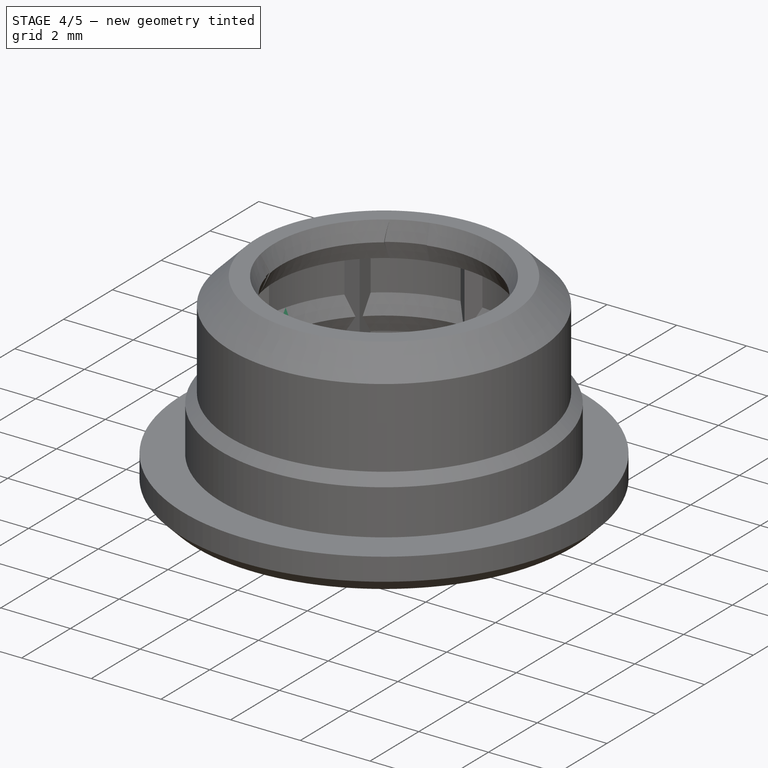
[diagram: stage 4 of 5 — iso view after this stage's code; geometry added in this stage tinted green]
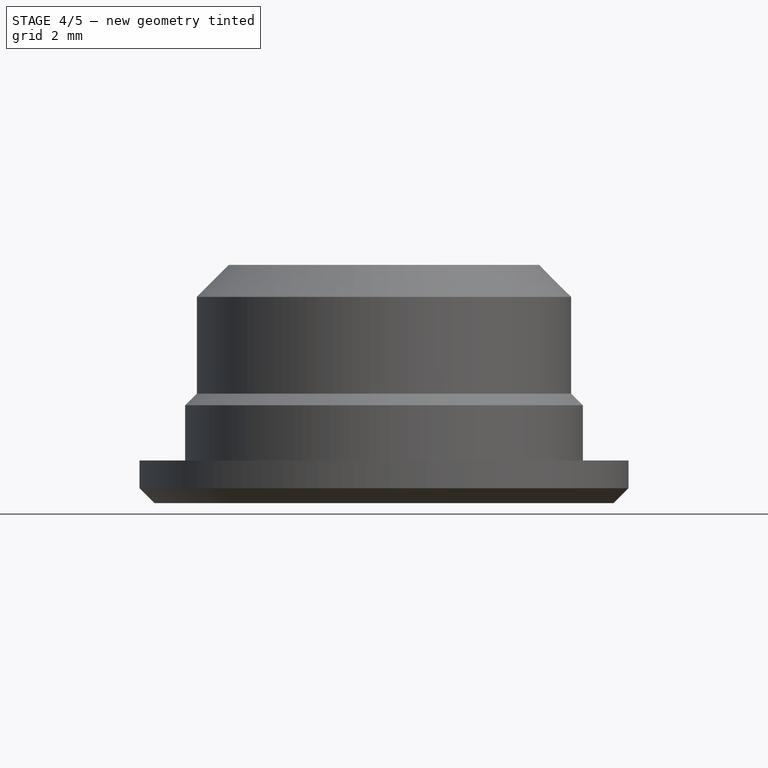
[diagram: stage 4 of 5 — front view after this stage's code; geometry added in this stage tinted green]
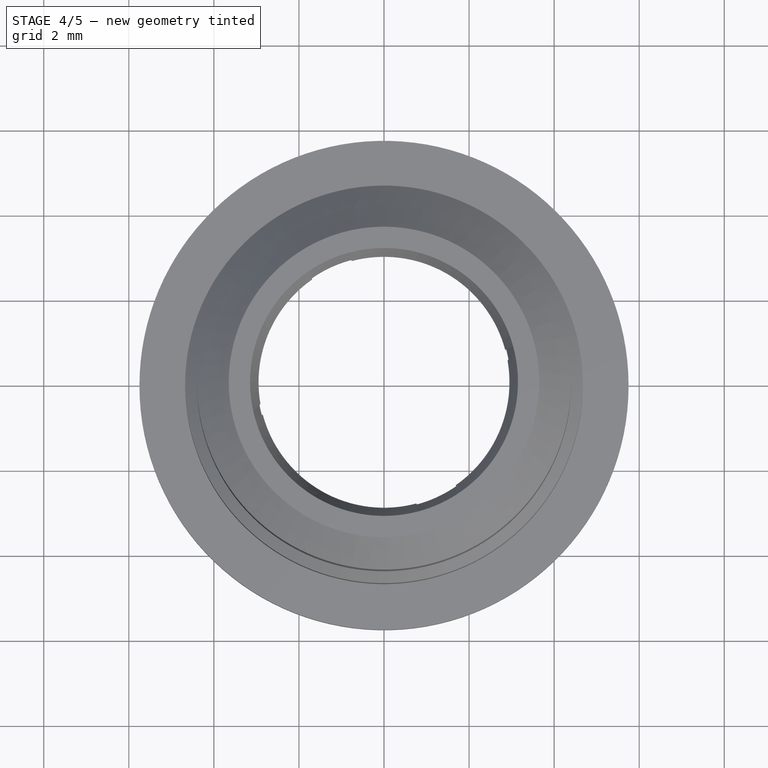
[diagram: stage 4 of 5 — top view after this stage's code; geometry added in this stage tinted green]
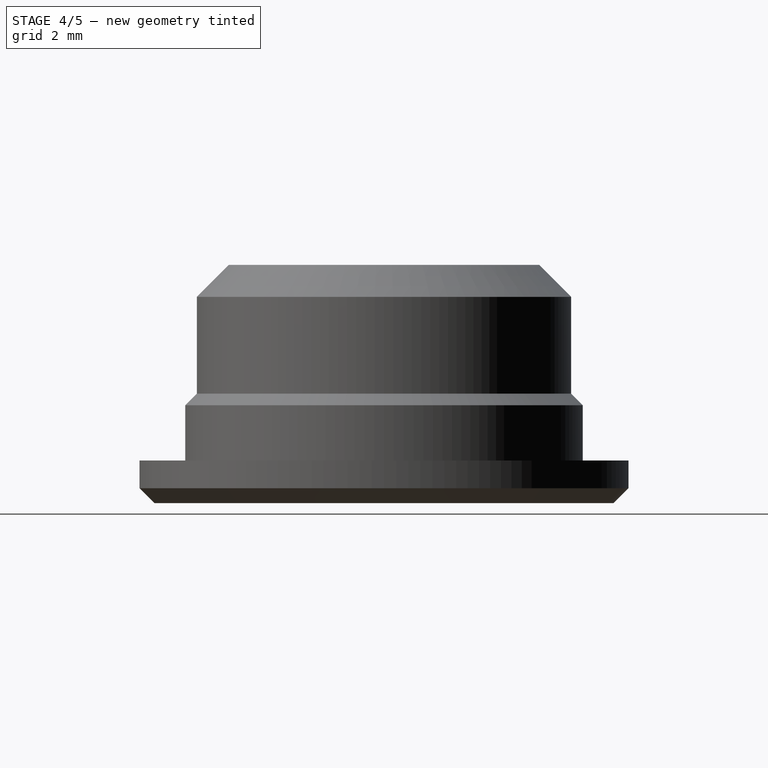
[diagram: stage 4 of 5 — right view after this stage's code; geometry added in this stage tinted green]
FEATURE [Sketcher::SketchObject] Sketch004
  ArcFitTolerance = 0
  AttachmentSupport = -> [YZ_Plane002]
  FullyConstrained = true
  MakeInternals = false
  MapMode = 5
  Placement = pos=(0,0,0) rot=(0.57735,0.57735,0.57735;2.0944rad)
  sketch-geometry (5):
    g0: LineSegment StartX=-3.6 StartY=5.6 StartZ=0 EndX=-3.15 EndY=5.6 EndZ=0
    g1: LineSegment StartX=-3.15 StartY=5.6 StartZ=0 EndX=-2.95 EndY=5.1 EndZ=0
    g2: LineSegment StartX=-2.95 StartY=5.1 StartZ=0 EndX=-3.15 EndY=4.6 EndZ=0
    g3: LineSegment StartX=-3.15 StartY=4.6 StartZ=0 EndX=-3.6 EndY=4.6 EndZ=0
    g4: LineSegment StartX=-3.6 StartY=4.6 StartZ=0 EndX=-3.6 EndY=5.6 EndZ=0
  constraints (15):
    c: Horizontal(g0)
    c: Coincident(g1,g0)
    c: Coincident(g2,g1)
    c: Coincident(g3,g2)
    c: Coincident(g4,g3)
    c: Coincident(g4,g0)
    c: Vertical(g4)
    c: Equal(g1,g2)
    c: DistanceX(g1,g-1) = 2.95
    c: DistanceX(g0,g-1) = 3.15
    c: Vertical(g2,g0)
    c: Horizontal(g3)
    c: DistanceY(g4,g4) = 1
    c: DistanceY(g-1,g0) = 5.6
    c: DistanceX(g3,g-1) = 3.6
FEATURE [PartDesign::Revolution] Revolution002
  Angle = 30
  Angle2 = 60
  Axis = (0,0,1)
  Base = (0,0,0)
  BaseFeature = -> Revolution001
  Midplane = true
  Placement = pos=(0,0,0) rot=(1,0,0;1.5708rad)
  Profile = -> Sketch004
  ReferenceAxis = -> Sketch004 [V_Axis]
  Refine = true
  Suppressed = false
  Type = 0
FEATURE [PartDesign::PolarPattern] PolarPattern001
  Angle = 360
  Axis = -> Sketch004 [V_Axis]
  BaseFeature = -> Revolution002
  Mode = 0
  Occurrences = 6
  Offset = 120
  Originals = -> [Revolution002]
  Placement = pos=(0,0,0) rot=(1,0,0;1.5708rad)
  Refine = true
  Suppressed = false
  TransformMode = 0
FEATURE [PartDesign::Plane] DatumPlane
  AttachmentOffset = pos=(0,0,0) rot=(0,1,0;0.523599rad)
  AttachmentSupport = -> [YZ_Plane002]
  Length = 79.989
  MapMode = 5
  Placement = pos=(0,0,0) rot=(0.377964,0.654654,0.654654;2.41886rad)
  ResizeMode = 0
  Width = 61.6877
FEATURE [Sketcher::SketchObject] Sketch005
  ArcFitTolerance = 0
  AttachmentSupport = -> [DatumPlane]
  FullyConstrained = true
  MakeInternals = false
  MapMode = 5
  Placement = pos=(0,0,0) rot=(0.377964,0.654654,0.654654;2.41886rad)
  sketch-geometry (3):
    g0: LineSegment StartX=-3.6 StartY=3.5 StartZ=0 EndX=-3.3 EndY=3 EndZ=0
    g1: LineSegment StartX=-3.3 StartY=3 StartZ=0 EndX=-3.6 EndY=2.5 EndZ=0
    g2: LineSegment StartX=-3.6 StartY=2.5 StartZ=0 EndX=-3.6 EndY=3.5 EndZ=0
  constraints (9):
    c: Coincident(g1,g0)
    c: Coincident(g2,g1)
    c: Coincident(g2,g0)
    c: Vertical(g2)
    c: Equal(g0,g1)
    c: DistanceY(g2,g2) = 1
    c: DistanceY(g-1,g0) = 3
    c: DistanceX(g0,g-1) = 3.3
    c: DistanceX(g1,g-1) = 3.6
FEATURE [PartDesign::Revolution] Revolution003
  Angle = 30
  Angle2 = 60
  Axis = (0,0,1)
  Base = (0,0,0)
  BaseFeature = -> PolarPattern001
  Midplane = true
  Placement = pos=(0,0,0) rot=(1,0,0;1.5708rad)
  Profile = -> Sketch005
  ReferenceAxis = -> Sketch005 [V_Axis]
  Refine = true
  Suppressed = false
  Type = 0
FEATURE [PartDesign::PolarPattern] PolarPattern002
  Angle = 360
  Axis = -> Sketch005 [V_Axis]
  BaseFeature = -> Revolution003
  Mode = 0
  Occurrences = 3
  Offset = 120
  Originals = -> [Revolution003]
  Placement = pos=(0,0,0) rot=(1,0,0;1.5708rad)
  Refine = true
  Suppressed = false
  TransformMode = 0
FEATURE [PartDesign::Plane] DatumPlane001
  AttachmentOffset = pos=(0,0,0) rot=(0,-1,0;0.523599rad)
  AttachmentSupport = -> [YZ_Plane002]
  Length = 79.989
  MapMode = 5
  Placement = pos=(0,0,0) rot=(0.774597,0.447214,0.447214;1.82348rad)
  ResizeMode = 0
  Width = 61.6877
FEATURE [Sketcher::SketchObject] Sketch006
  ArcFitTolerance = 0
  AttachmentSupport = -> [DatumPlane001]
  FullyConstrained = true
  MakeInternals = false
  MapMode = 5
  Placement = pos=(0,0,0) rot=(0.774597,0.447214,0.447214;1.82348rad)
  sketch-geometry (3):
    g0: LineSegment StartX=-3.6 StartY=0.25 StartZ=0 EndX=-3.35 EndY=0.5 EndZ=0
    g1: LineSegment StartX=-3.35 StartY=0.5 StartZ=0 EndX=-3.6 EndY=1 EndZ=0
    g2: LineSegment StartX=-3.6 StartY=1 StartZ=0 EndX=-3.6 EndY=0.25 EndZ=0
  constraints (9):
    c: Coincident(g1,g0)
    c: Coincident(g2,g1)
    c: Coincident(g2,g0)
    c: Vertical(g2)
    c: DistanceX(g0,g-1) = 3.6
    c: DistanceX(g0,g-1) = 3.35
    c: DistanceY(g-1,g1) = 1
    c: DistanceY(g-1,g0) = 0.5
    c: Angle(g-1,g0) = 0.785398
FEATURE [PartDesign::Revolution] Revolution004
  Angle = 30
  Angle2 = 60
  Axis = (0,0,1)
  Base = (0,0,0)
  BaseFeature = -> PolarPattern002
  Midplane = true
  Placement = pos=(0,0,0) rot=(1,0,0;1.5708rad)
  Profile = -> Sketch006
  ReferenceAxis = -> Sketch006 [V_Axis]
  Refine = true
  Suppressed = false
  Type = 0
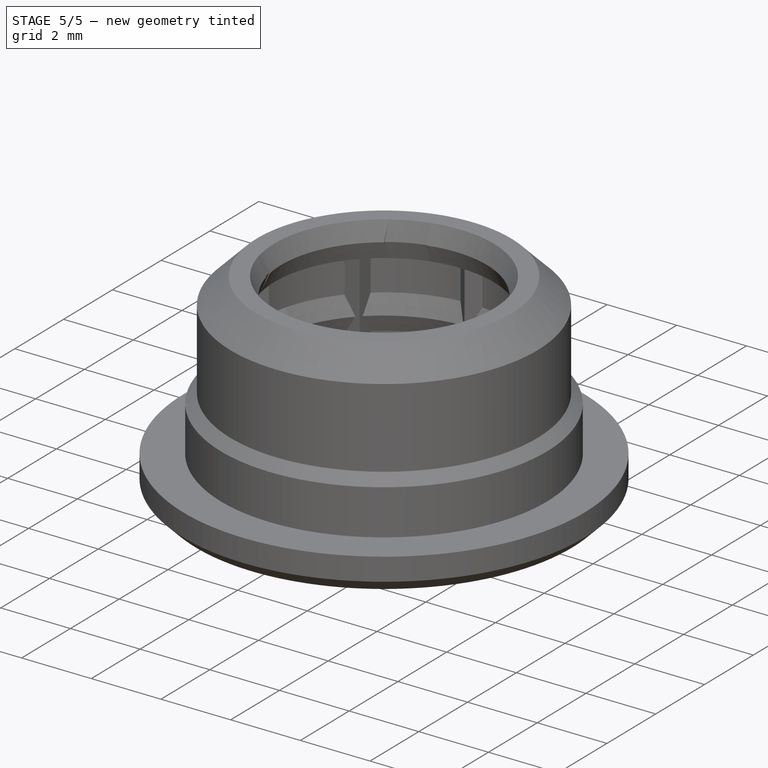
[diagram: stage 5 of 5 — iso view after this stage's code; geometry added in this stage tinted green]
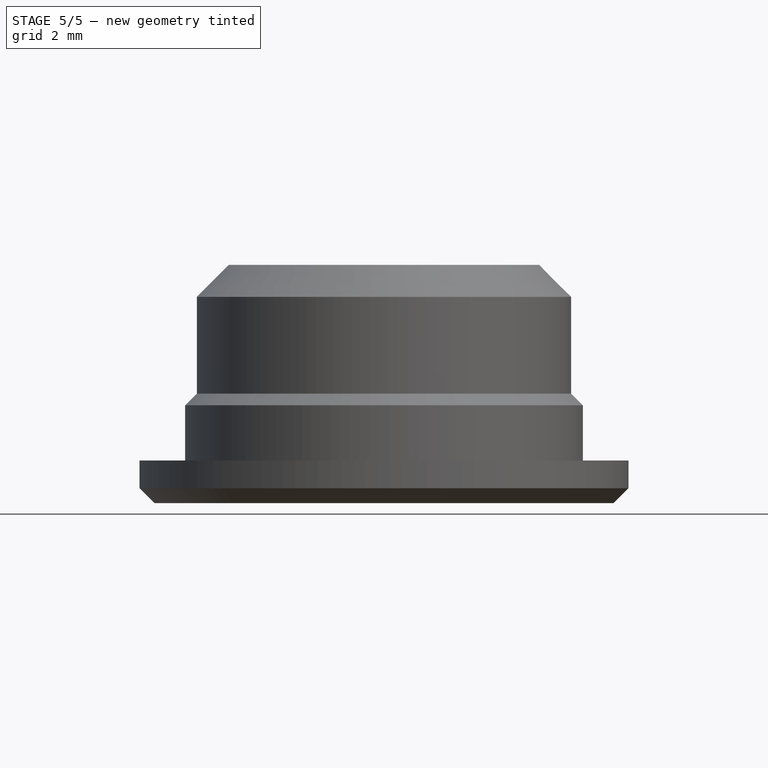
[diagram: stage 5 of 5 — front view after this stage's code; geometry added in this stage tinted green]
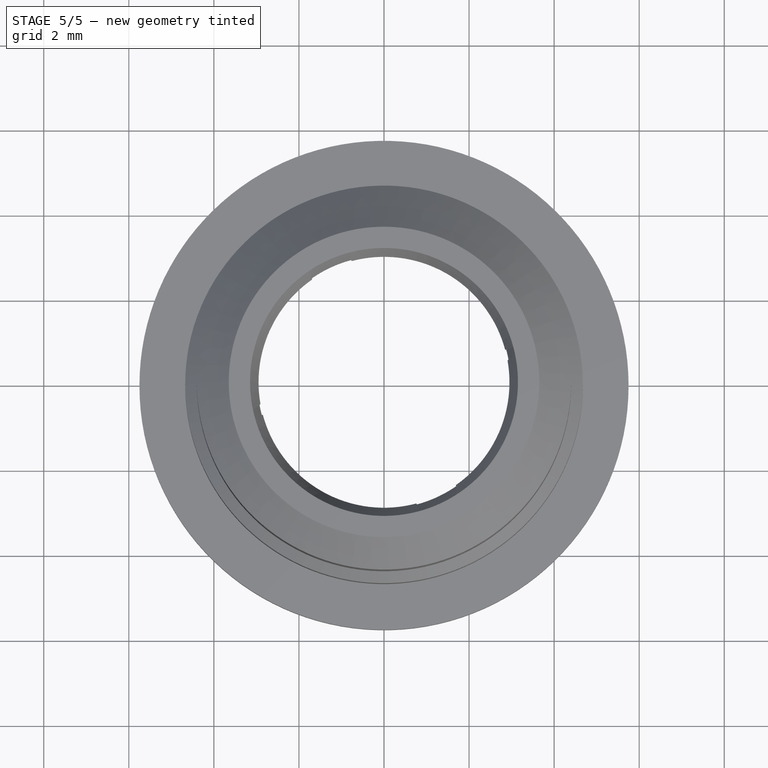
[diagram: stage 5 of 5 — top view after this stage's code; geometry added in this stage tinted green]
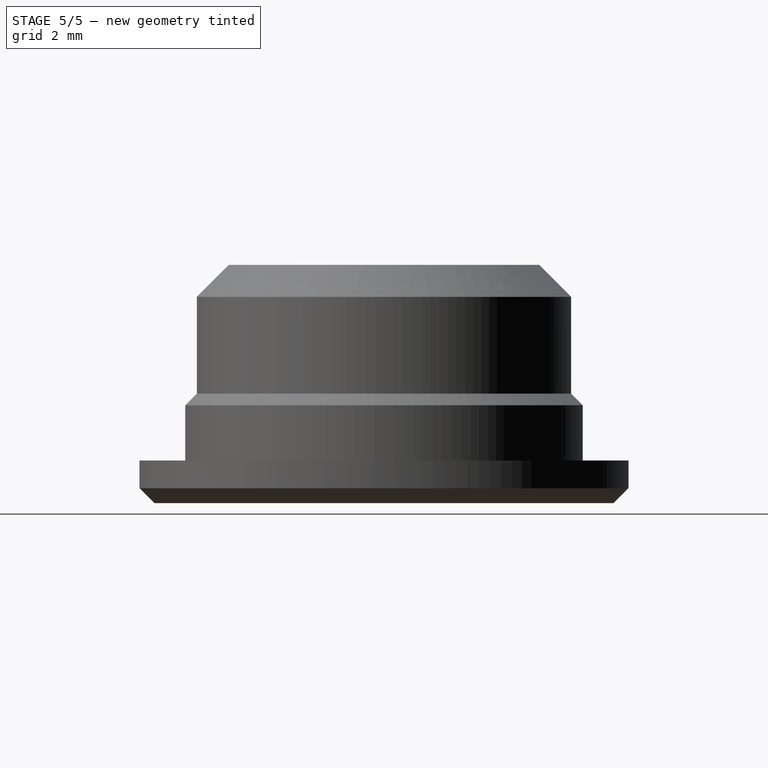
[diagram: stage 5 of 5 — right view after this stage's code; geometry added in this stage tinted green]
FEATURE [Sketcher::SketchObject] Sketch001
  ArcFitTolerance = 0
  AttachmentSupport = -> [XY_Plane001]
  FullyConstrained = true
  MakeInternals = false
  MapMode = 5
  sketch-geometry (7):
    g0: LineSegment StartX=0 StartY=0 StartZ=0 EndX=-0.776457 EndY=2.89778 EndZ=0
    g1: LineSegment StartX=0.776457 StartY=2.89778 StartZ=0 EndX=0 EndY=0 EndZ=0
    g2: ArcOfCircle CenterX=0 CenterY=0 CenterZ=0 NormalX=0 NormalY=0 NormalZ=1 AngleXU=0 Radius=3.25 StartAngle=1.38895 EndAngle=1.75264
    g3: ArcOfCircle CenterX=-0.544263 CenterY=2.95999 CenterZ=0 NormalX=0 NormalY=0 NormalZ=1 AngleXU=0 Radius=0.240385 StartAngle=1.75264 EndAngle=3.40339
    g4: ArcOfCircle CenterX=0.544263 CenterY=2.95999 CenterZ=0 NormalX=0 NormalY=0 NormalZ=1 AngleXU=0 Radius=0.240385 StartAngle=6.02139 EndAngle=7.67214
    g5: LineSegment [constr] StartX=-0.776457 StartY=2.89778 StartZ=0 EndX=0.776457 EndY=2.89778 EndZ=0
    g6: LineSegment [constr] StartX=-0.587735 StartY=3.19641 StartZ=0 EndX=0.587735 EndY=3.19641 EndZ=0
  constraints (16):
    c: Coincident(g-1,g0)
    c: Coincident(g1,g0)
    c: Coincident(g2,g0)
    c: Tangent(g0,g3) = 1.5708
    c: Tangent(g2,g3) = -1.5708
    c: Tangent(g2,g4) = -1.5708
    c: Tangent(g1,g4) = 1.5708
    c: Coincident(g5,g0)
    c: Coincident(g5,g1)
    c: Horizontal(g5)
    c: Coincident(g6,g2)
    c: Coincident(g6,g2)
    c: Horizontal(g6)
    c: Diameter(g2) = 6.5
    c: Angle(g1,g0) = 0.523599
    c: Distance(g0) = 3
FEATURE [TechDraw::DrawSVGTemplate] Template
  EditableTexts = COLOR=Black; CreationDate=2024/04/17; E.G.APPROVED=SAMPLE ORDER; FC-Scale=10:1; FC-Title=PLASTIC - BUSHING - POT; IntechStudioLtd.=Intech Studio Ltd.; MATERIAL=POM; REV=04; STANDARD=+/- 0,1; STATUS=SAMPLE ORDER
  Height = 297
  Orientation = 1
  Template = <userpath>/Documents/grid-hardware/Manufacturing/FreeCAD_technical_drawing_template/A3_LandscapeTD_MODIFIED.svg
  Width = 420
FEATURE [Sketcher::SketchObject] Sketch002
  ArcFitTolerance = 0
  AttachmentSupport = -> [XZ_Plane]
  FullyConstrained = true
  MakeInternals = false
  MapMode = 5
  Placement = pos=(0,0,0) rot=(1,0,0;1.5708rad)
  sketch-geometry (1):
    g0: LineSegment StartX=0 StartY=-1 StartZ=0 EndX=0 EndY=6 EndZ=0
  constraints (4):
    c: PointOnObject(g0,g-2)
    c: PointOnObject(g0,g-2)
    c: DistanceY(g0,g0) = 7
    c: DistanceY(g0,g-1) = 1
FEATURE [PartDesign::Body] Body  label="PLASTIC-BUSHING-POT"
  AllowCompound = false
  Group = -> [Sketch,Revolution,Sketch002]
  Origin = -> Origin
  Tip = -> Revolution
FEATURE [PartDesign::FeatureBase] Clone
  BaseFeature = -> Body
  Suppressed = false
FEATURE [PartDesign::Pocket] Pocket
  BaseFeature = -> Clone
  Direction = (0,0,-1)
  Length = 5
  Length2 = 5
  Midplane = true
  Profile = -> Sketch001
  ReferenceAxis = -> Sketch001 [N_Axis]
  Suppressed = false
  Type = 1
FEATURE [PartDesign::PolarPattern] PolarPattern
  Angle = 360
  Axis = -> Sketch001 [N_Axis]
  BaseFeature = -> Pocket
  Mode = 0
  Occurrences = 6
  Offset = 120
  Originals = -> [Pocket]
  Suppressed = false
  TransformMode = 0
FEATURE [PartDesign::PolarPattern] PolarPattern003
  Angle = 360
  Axis = -> Sketch006 [V_Axis]
  BaseFeature = -> Revolution004
  Mode = 0
  Occurrences = 3
  Offset = 120
  Originals = -> [Revolution004]
  Placement = pos=(0,0,0) rot=(1,0,0;1.5708rad)
  Refine = true
  Suppressed = false
  TransformMode = 0
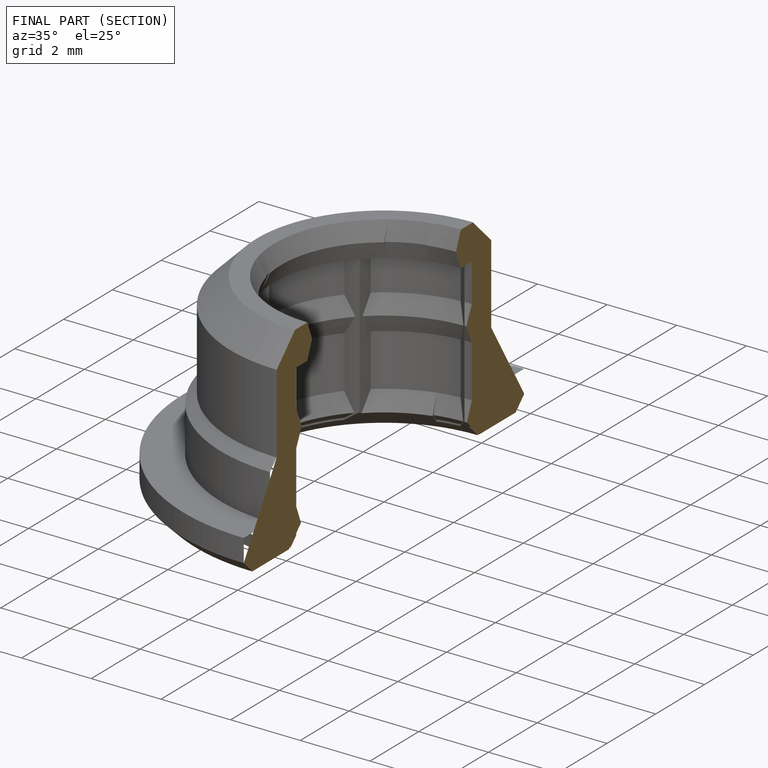
[diagram: finished part — half-section view (interior)]
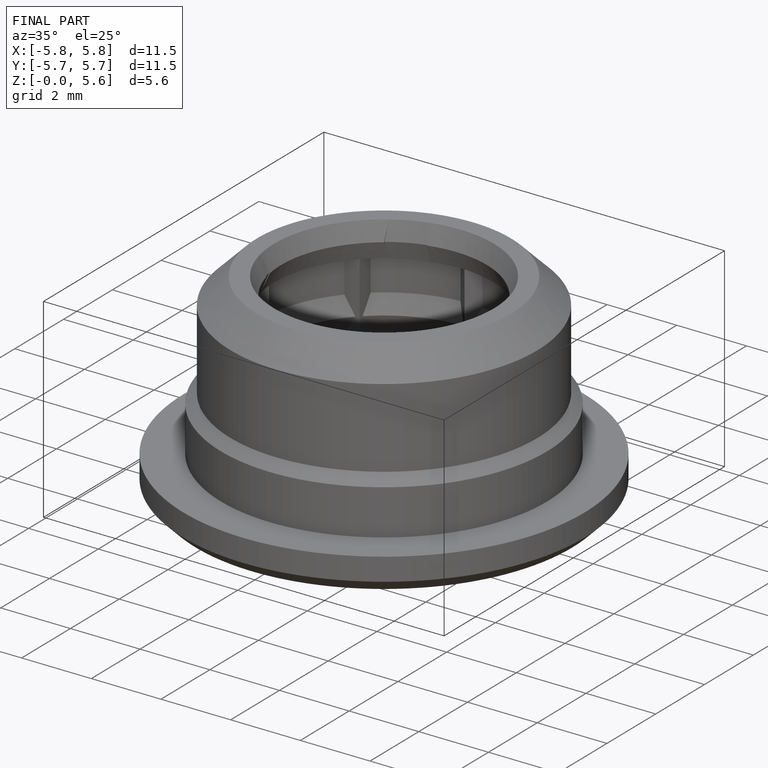
[diagram: finished part — iso view with bounding-box wireframe]
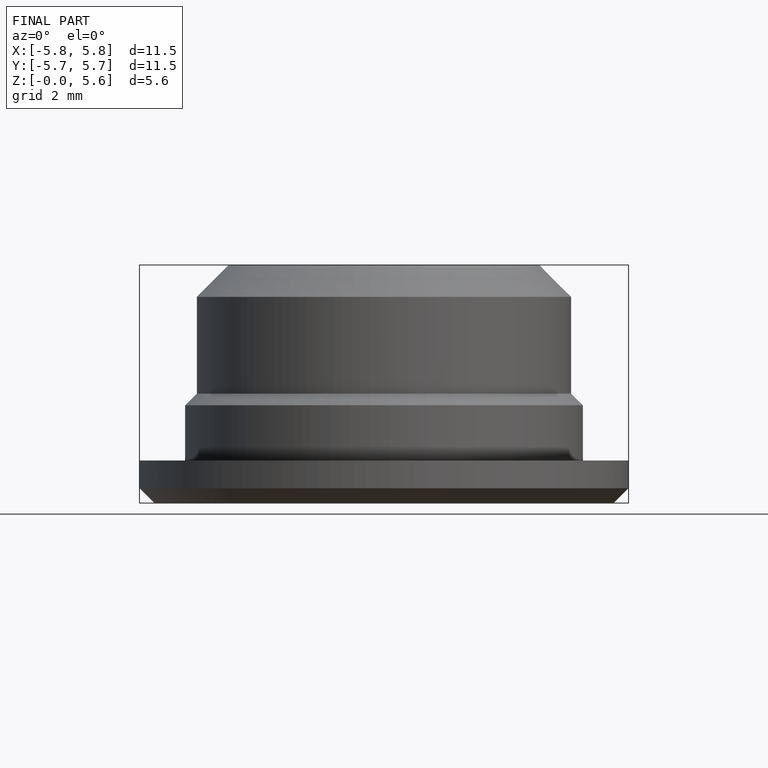
[diagram: finished part — front view with bounding-box wireframe]
